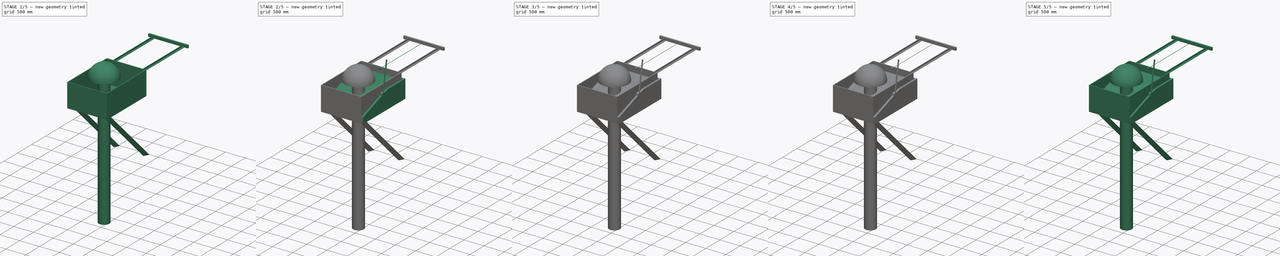
[diagram: build sequence overview — one tinted view per stage of 5, left to right]
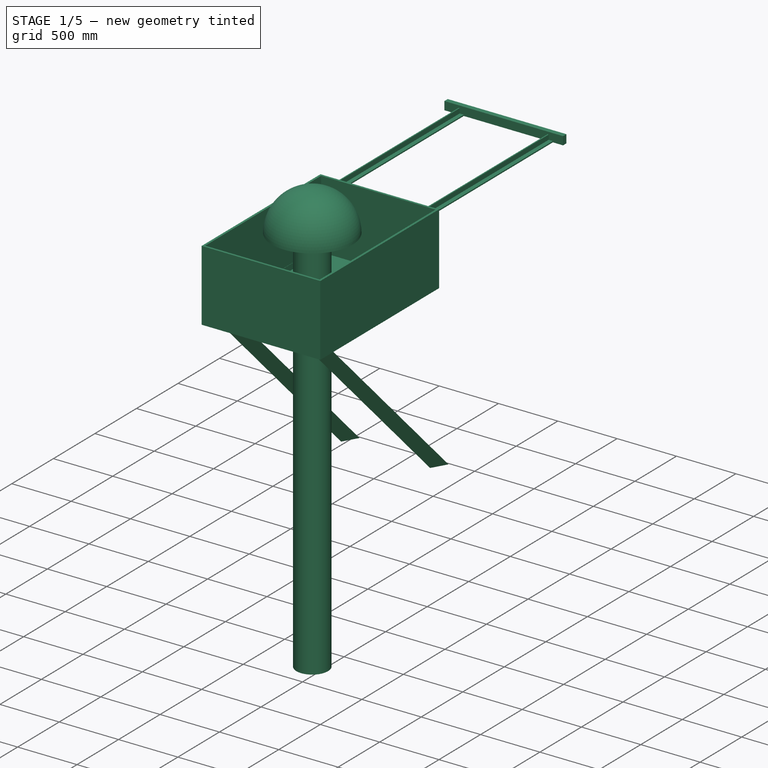
[diagram: stage 1 of 5 — iso view after this stage's code; geometry added in this stage tinted green]
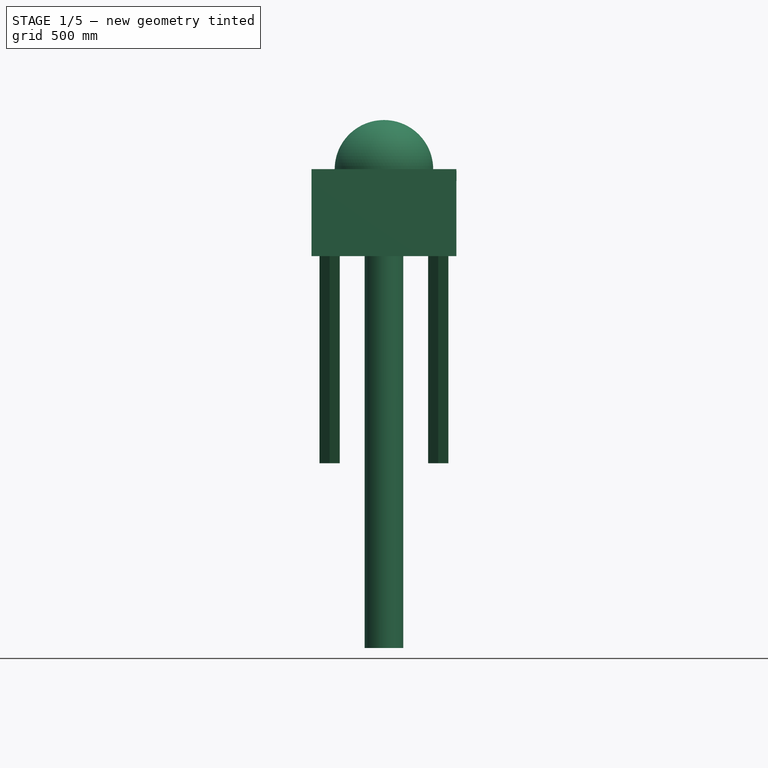
[diagram: stage 1 of 5 — front view after this stage's code; geometry added in this stage tinted green]
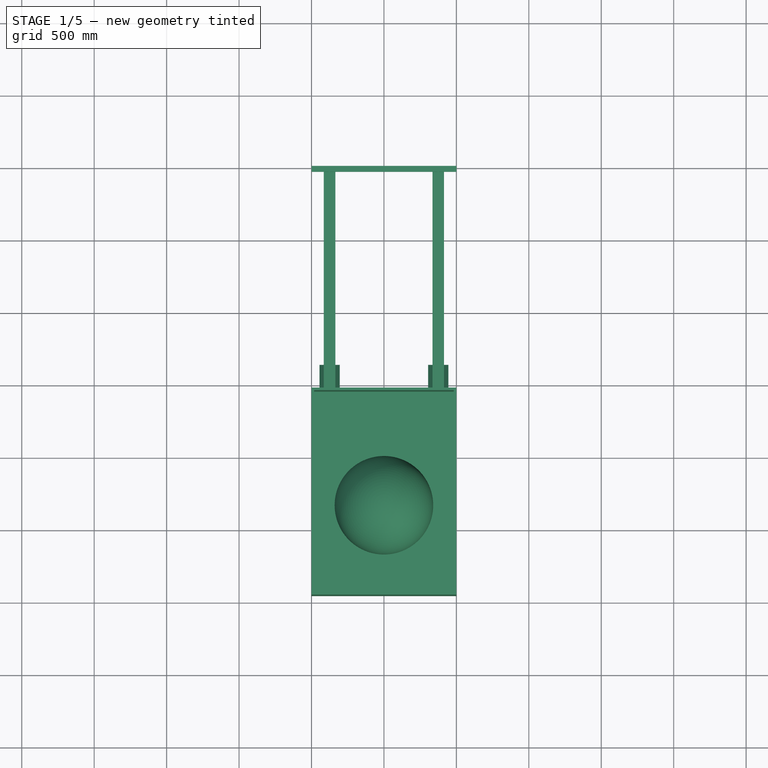
[diagram: stage 1 of 5 — top view after this stage's code; geometry added in this stage tinted green]
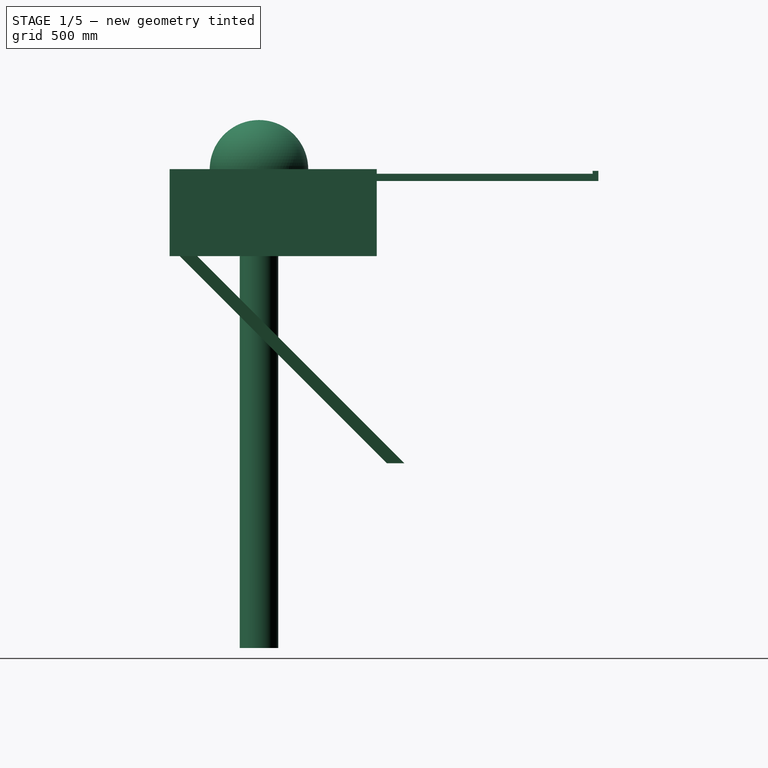
[diagram: stage 1 of 5 — right view after this stage's code; geometry added in this stage tinted green]
FCSTD DOCUMENT  (FreeCAD 0.16R6707 (Git))
Label: FINAL_PROLIJO
License: All rights reserved
LicenseURL: http://en.wikipedia.org/wiki/All_rights_reserved
objects: Part::FeaturePython×29, Sketcher::SketchObject×20, PartDesign::Pad×14, App::DocumentObjectGroup×10, Part::Cylinder×6, Part::MultiFuse×6, PartDesign::Pocket×4, Part::Part2DObjectPython×3, Part::Box×2, Part::Thickness×2, Spreadsheet::Sheet×1, Part::Mirroring×1, PartDesign::Fillet×1, Part::Wedge×1, PartDesign::Revolution×1, Part::Feature×1, Part::Sphere×1, Part::Extrusion×1
note: 112 computed .brp shape members not serialized (recipe doc carries the construction recipe); baked Part::Feature solids carry a one-line shape summary decoded from their .brp

FEATURE [Spreadsheet::Sheet] Spreadsheet  label="Medidas"
  cells = A1=CAJA; C1=TAPA; A2=ESPESOR; B2(espesor)=18; C2=ESPESOR; D2==B2; A3=ALTURA; B3(alto_caja)=600; C3=ALTURA1; D3(alto_tapa1)=450; A4=LARGO; B4(largo_caja)=1430; C4=ALTURA2; D4(alto_tapa2)=150; A5=ANCHO; B5(ancho_caja)=1000; C5=LARGO1; D5(largo_tapa1)=1500; A6=LARGO RIEL; B6(largo_riel)=1500; C6=LARGO 2; D6(largo_tapa2)=630; A7=Z EJE BRAZOS; B7(z_brazos)=400; C7=ANCHO; D7(ancho_tapa)=1046; A8=Y EJE BRAZOS; B8(y_brazos)==B4 / 2; C8=INCLINACION TECHO; D8(inclinacion_techo)==atan((D3 - D4) / (D5 - D6)); A9=LARGO BRAZOS; B9(largo_brazos)==sqrt((B3 - B7 - 25) ^ 2 + (B4 - B8) ^ 2); C9=Z TAPA; D9(z_tapa)==sin(90 - B10) * B9 + B7; A10=INCLINACION BRAZOS; B10(inclinacion_brazos)=-10; C10=Y TAPA; D10(y_tapa)==B4 - sin(B11) * B9 + cos(90 - B10) * B9; A11=RANGO DE INCLINACION +/-; B11==90° - atan((B3 - B7 - 25) / (B4 - B8)); C11=INCLINACION TAPA; D11(inclinacion_tapa)==90° - acos((D9 + 25 - B3) / (D5 - 50)); A12=Z RIEL; B12(z_riel)=600; C12=LARGO TECHO INCLINADO; D12(largo_techo_inclinado)==(D3 - D4) / sin(D8); A13=RADIO EJE BRAZO; B13(radio_eje_brazos)=40
FEATURE [Part::Box] Box  label="Caja_base"
  Height = 600
  Length = 1000
  Width = 1430
  expr: Height = Medidas.alto_caja
  expr: Width = Medidas.largo_caja
  expr: Length = Medidas.ancho_caja
FEATURE [Part::Thickness] Thickness  label="caja_paredes"
  Faces = -> Box [Face6]
  Intersection = false
  Join = 0
  Mode = 0
  SelfIntersection = false
  Value = -18
  expr: Value = -Medidas.espesor
FEATURE [Sketcher::SketchObject] Sketch
  Placement = pos=(0,1430,0) rot=(0,0.707107,0.707107;3.14159rad)
  Support = -> Thickness [Face4]
  expr: Constraints[53] = Medidas.alto_caja - 81.65000000000001
  expr: Constraints[52] = Medidas.ancho_caja * 3 / 8
  sketch-geometry (18):
    g0: LineSegment StartX=-165 StartY=518.35 StartZ=0 EndX=-85 EndY=518.35 EndZ=0
    g1: LineSegment StartX=-85 StartY=518.35 StartZ=0 EndX=-85 EndY=528.35 EndZ=0
    g2: LineSegment StartX=-85 StartY=528.35 StartZ=0 EndX=-120 EndY=528.35 EndZ=0
    g3: LineSegment StartX=-120 StartY=528.35 StartZ=0 EndX=-120 EndY=568.35 EndZ=0
    g4: LineSegment StartX=-120 StartY=568.35 StartZ=0 EndX=-130 EndY=568.35 EndZ=0
    g5: LineSegment StartX=-130 StartY=568.35 StartZ=0 EndX=-130 EndY=528.35 EndZ=0
    g6: LineSegment StartX=-130 StartY=528.35 StartZ=0 EndX=-165 EndY=528.35 EndZ=0
    g7: LineSegment StartX=-165 StartY=528.35 StartZ=0 EndX=-165 EndY=518.35 EndZ=0
    g8: LineSegment StartX=-915 StartY=518.35 StartZ=0 EndX=-835 EndY=518.35 EndZ=0
    g9: LineSegment StartX=-835 StartY=518.35 StartZ=0 EndX=-835 EndY=528.35 EndZ=0
    g10: LineSegment StartX=-915 StartY=528.35 StartZ=0 EndX=-915 EndY=518.35 EndZ=0
    g11: LineSegment [constr] StartX=-500 StartY=0 StartZ=0 EndX=-500 EndY=701.748 EndZ=0
    g12: LineSegment StartX=-915 StartY=528.35 StartZ=0 EndX=-880 EndY=528.35 EndZ=0
    g13: LineSegment StartX=-880 StartY=528.35 StartZ=0 EndX=-880 EndY=568.35 EndZ=0
    g14: LineSegment StartX=-880 StartY=568.35 StartZ=0 EndX=-870 EndY=568.35 EndZ=0
    g15: LineSegment StartX=-870 StartY=568.35 StartZ=0 EndX=-870 EndY=528.35 EndZ=0
    g16: LineSegment StartX=-870 StartY=528.35 StartZ=0 EndX=-835 EndY=528.35 EndZ=0
    g17: LineSegment [constr] StartX=-125 StartY=568.35 StartZ=0 EndX=-125 EndY=518.35 EndZ=0
  constraints (55):
    c: Horizontal(g0)
    c: Coincident(g0,g1)
    c: Vertical(g1)
    c: Coincident(g1,g2)
    c: Horizontal(g2)
    c: Coincident(g2,g3)
    c: Vertical(g3)
    c: Coincident(g3,g4)
    c: Horizontal(g4)
    c: Coincident(g4,g5)
    c: Vertical(g5)
    c: Coincident(g5,g6)
    c: Horizontal(g6)
    c: Coincident(g6,g7)
    c: Coincident(g7,g0)
    c: Vertical(g7)
    c: Equal(g2,g6)
    c: DistanceX(g4,g4) = 10
    c: Horizontal(g8)
    c: Coincident(g8,g9)
    c: Vertical(g9)
    c: Coincident(g10,g8)
    c: Equal(g9,g10)
    c: Vertical(g10)
    c: PointOnObject(g11,g-1)
    c: Vertical(g11)
    c: Symmetric(g8,g0,g11)
    c: DistanceX(g11,g-1) = 500
    c: Coincident(g10,g12)
    c: Horizontal(g12)
    c: Coincident(g12,g13)
    c: Vertical(g13)
    c: Coincident(g13,g14)
    c: Horizontal(g14)
    c: Coincident(g14,g15)
    c: Vertical(g15)
    c: Coincident(g15,g16)
    c: Coincident(g16,g9)
    c: Horizontal(g16)
    c: Equal(g12,g16)
    c: DistanceX(g8,g8) = 80
    c: DistanceX(g12,g15) = 10
    c: Equal(g14,g10)
    c: DistanceX(g0,g0) = 80
    c: DistanceY(g0,g4) = 50
    c: DistanceY(g8,g14) = 50
    c: Equal(g7,g4)
    c: PointOnObject(g5,g2)
    c: PointOnObject(g17,g4)
    c: PointOnObject(g17,g0)
    c: Vertical(g17)
    c: Symmetric(g0,g0,g17)
    c: DistanceX(g11,g17) = 375
    c: DistanceY(g0) = 518.35
    c: DistanceY(g11,g11) = 701.748
FEATURE [PartDesign::Pad] Pad  label="caja_rieles"
  Length = 1500
  Length2 = 100
  Sketch = -> Sketch
  Type = 0
  expr: Length = Medidas.largo_riel
FEATURE [Part::Box] Box003  label="Cubo002"
  Height = 70
  Length = 1000
  Placement = pos=(1,2920,518.35) rot=(0,0,1;0rad)
  Width = 40
  expr: Placement.Base.z = Medidas.alto_caja - 81.65000000000001
  expr: Length = Medidas.ancho_caja
  expr: Placement.Base.y = Medidas.largo_caja + Medidas.largo_riel - 10
FEATURE [Part::MultiFuse] Fusion001  label="caja_rielCompleto"
  Shapes = -> [Box003,Pad]
FEATURE [Sketcher::SketchObject] Sketch037  label="Sketch perfil001"
  sketch-geometry (6):
    g0: LineSegment StartX=2 StartY=2 StartZ=0 EndX=50 EndY=2 EndZ=0
    g1: LineSegment StartX=50 StartY=2 StartZ=0 EndX=50 EndY=0 EndZ=0
    g2: LineSegment StartX=50 StartY=0 StartZ=0 EndX=0 EndY=0 EndZ=0
    g3: LineSegment StartX=0 StartY=0 StartZ=0 EndX=0 EndY=50 EndZ=0
    g4: LineSegment StartX=0 StartY=50 StartZ=0 EndX=2 EndY=50 EndZ=0
    g5: LineSegment StartX=2 StartY=50 StartZ=0 EndX=2 EndY=2 EndZ=0
  constraints (17):
    c: Coincident(g0,g1)
    c: Vertical(g1)
    c: Coincident(g1,g2)
    c: Horizontal(g2)
    c: Coincident(g2,g3)
    c: Vertical(g3)
    c: Coincident(g3,g4)
    c: Horizontal(g4)
    c: Coincident(g4,g5)
    c: Coincident(g5,g0)
    c: Vertical(g5)
    c: Horizontal(g0)
    c: Coincident(g2,g-1)
    c: Equal(g5,g0)
    c: DistanceY(g1,g1) = -2
    c: Equal(g4,g1)
    c: DistanceY(g-1,g3) = 50
FEATURE [PartDesign::Pad] Pad019  label="Perfil_largo_caja"
  Length = 1294
  Length2 = 0
  Sketch = -> Sketch037
  Type = 4
  expr: Length = Medidas.largo_caja - 2 * Medidas.espesor - 100
FEATURE [Part::Cylinder] Cylinder009  label="Pilar"
  Angle = 360
  Height = 3304
  Placement = pos=(500,785,-2659) rot=(0,0,1;0rad)
  Radius = 133
  expr: Placement.Base.x = Medidas.ancho_caja / 2
FEATURE [Part::Sphere] Sphere001  label="Telscopio"
  Angle1 = 0
  Angle2 = 90
  Angle3 = 360
  Placement = pos=(500,785,645) rot=(0,0,1;0rad)
  Radius = 340
  expr: Placement.Base.x = Medidas_caja.ancho_caja / 2
FEATURE [Part::MultiFuse] Fusion003004  label="Pilarytele"
  Placement = pos=(0,-168,-46) rot=(0,0,1;0rad)
  Shapes = -> [Sphere001,Cylinder009]
FEATURE [Sketcher::SketchObject] Sketch050
  Placement = pos=(0,0,0) rot=(1,0,0;3.14159rad)
  expr: Constraints[11] = Medidas.ancho_caja * 3 / 8
  expr: Constraints[2] = Medidas.ancho_caja / 2
  sketch-geometry (7):
    g0: LineSegment [constr] StartX=500 StartY=0 StartZ=0 EndX=500 EndY=-310.186 EndZ=0
    g1: LineSegment StartX=125 StartY=-70 StartZ=0 EndX=55 EndY=-191.244 EndZ=0
    g2: LineSegment StartX=55 StartY=-191.244 StartZ=0 EndX=195 EndY=-191.244 EndZ=0
    g3: LineSegment StartX=195 StartY=-191.244 StartZ=0 EndX=125 EndY=-70 EndZ=0
    g4: LineSegment StartX=875 StartY=-70 StartZ=0 EndX=805 EndY=-191.244 EndZ=0
    g5: LineSegment StartX=805 StartY=-191.244 StartZ=0 EndX=945 EndY=-191.244 EndZ=0
    g6: LineSegment StartX=945 StartY=-191.244 StartZ=0 EndX=875 EndY=-70 EndZ=0
  constraints (20):
    c: PointOnObject(g0,g-1)
    c: Vertical(g0)
    c: DistanceX(g0) = 500
    c: Coincident(g1,g2)
    c: Horizontal(g2)
    c: Coincident(g2,g3)
    c: Coincident(g3,g1)
    c: Equal(g2,g3)
    c: Equal(g3,g1)
    c: DistanceX(g2,g2) = 140
    c: DistanceY(g1,g-1) = 70
    c: DistanceX(g1,g0) = 375
    c: Coincident(g4,g5)
    c: Horizontal(g5)
    c: Coincident(g5,g6)
    c: Coincident(g6,g4)
    c: Equal(g5,g6)
    c: Equal(g6,g4)
    c: Equal(g2,g5) = 140
    c: Symmetric(g4,g1,g0)
FEATURE [Part::Part2DObjectPython] Line  # Draft 2D object (typed FeaturePython)
  ChamferSize = 0
  Closed = false
  End = (0,1454.57,630.392)
  FilletRadius = 0
  Length = 842.991
  MakeFace = true
  Points = (2) [(0,611.578,630.392),(0,1454.57,630.392)]
  Start = (0,611.578,630.392)
  Subdivisions = 0
FEATURE [Part::Part2DObjectPython] Line001  # Draft 2D object (typed FeaturePython)
  ChamferSize = 0
  Closed = false
  End = (0,2243.48,1121.37)
  FilletRadius = 0
  Length = 1704.16
  MakeFace = true
  Points = (2) [(0,611.578,630.392),(0,2243.48,1121.37)]
  Start = (0,611.578,630.392)
  Subdivisions = 0
FEATURE [App::DocumentObjectGroup] Construcci__n
  Group = -> [Circle,Line,Line001]
FEATURE [Part::Extrusion] Extrude001  label="Soportes001"
  Base = -> Sketch050
  Dir = (0,1430,-1430)
  Solid = true
  expr: Dir.y = Medidas.largo_caja
  expr: Dir.z = -Medidas.largo_caja
FEATURE [Sketcher::SketchObject] Sketch051
  Placement = pos=(1,0,0) rot=(0.57735,-0.57735,-0.57735;2.0944rad)
  Support = -> Fusion001 [Face1]
  expr: Constraints[2] = Medidas.z_brazos
  expr: Constraints[1] = Medidas.y_brazos
  expr: Constraints[0] = Medidas.radio_eje_brazos + 1
  sketch-geometry (1):
    g0: Circle CenterX=715 CenterY=400 CenterZ=0 NormalX=0 NormalY=0 NormalZ=1 Radius=41
  constraints (3):
    c: Radius(g0) = 41
    c: DistanceX(g0) = 715
    c: DistanceY(g0) = 400
FEATURE [PartDesign::Pocket] Pocket
  Length = 5
  Sketch = -> Sketch051
  Type = 1
FEATURE [Part::MultiFuse] Fusion003005  label="CajaConSoportes"
  Shapes = -> [Pocket,Extrude001]
FEATURE [App::DocumentObjectGroup] Grupo012  label="Cuerpo caja"
  Group = -> [Fusion001,Thickness,Fusion003005]
FEATURE [Part::FeaturePython] Clone  label="Clone of Perfil_largo_caja"  # Draft clone (typed FeaturePython)
  Objects = -> [Pad019]
  Placement = pos=(18,68,18) rot=(-0.57735,-0.57735,-0.57735;2.0944rad)
  Scale = (1,1,1)
  expr: Placement.Base.x = Medidas.espesor
  expr: Placement.Base.z = Medidas.espesor
  expr: Placement.Base.y = Medidas.espesor + 50
FEATURE [Part::FeaturePython] Clone100  label="Clone of Perfil_largo_caja001"  # Draft clone (typed FeaturePython)
  Objects = -> [Pad019]
  Placement = pos=(982,68,18) rot=(0,0.707107,0.707107;3.14159rad)
  Scale = (1,1,1)
  expr: Placement.Base.x = Medidas.ancho_caja - Medidas.espesor
  expr: Placement.Base.y = Medidas.espesor + 50
  expr: Placement.Base.z = Medidas.espesor
FEATURE [App::DocumentObjectGroup] Grupo001  label="PERFILES"
  Group = -> [Clone061,Clone060,Pad018,Clone059,Clone058,Pad019,Pad020,Clone063,Clone064,Clone,Clone100]
FEATURE [App::DocumentObjectGroup] Grupo  label="CAJA"
  Group = -> [mirror,Grupo001,Grupo012,Fusion005]
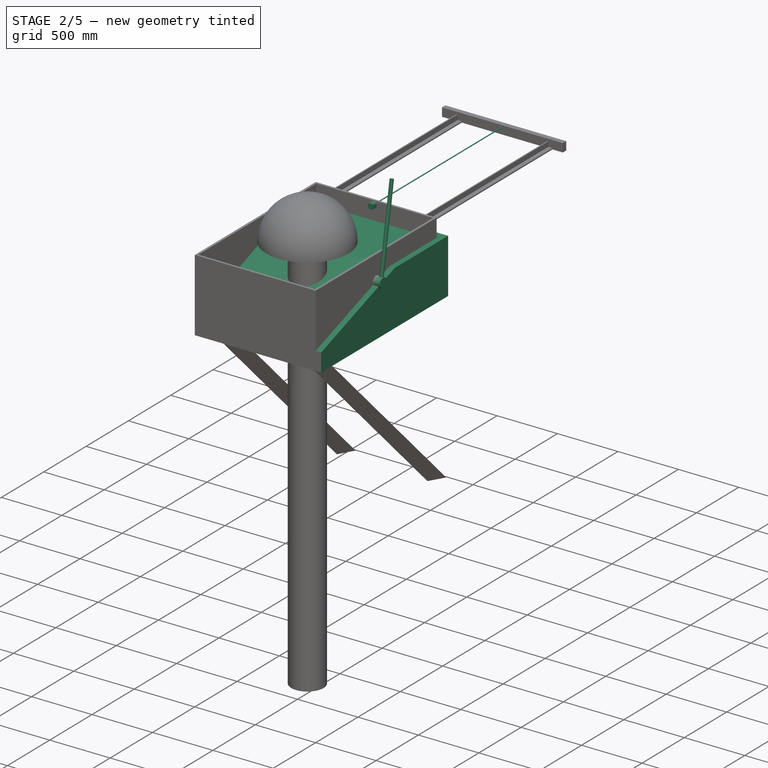
[diagram: stage 2 of 5 — iso view after this stage's code; geometry added in this stage tinted green]
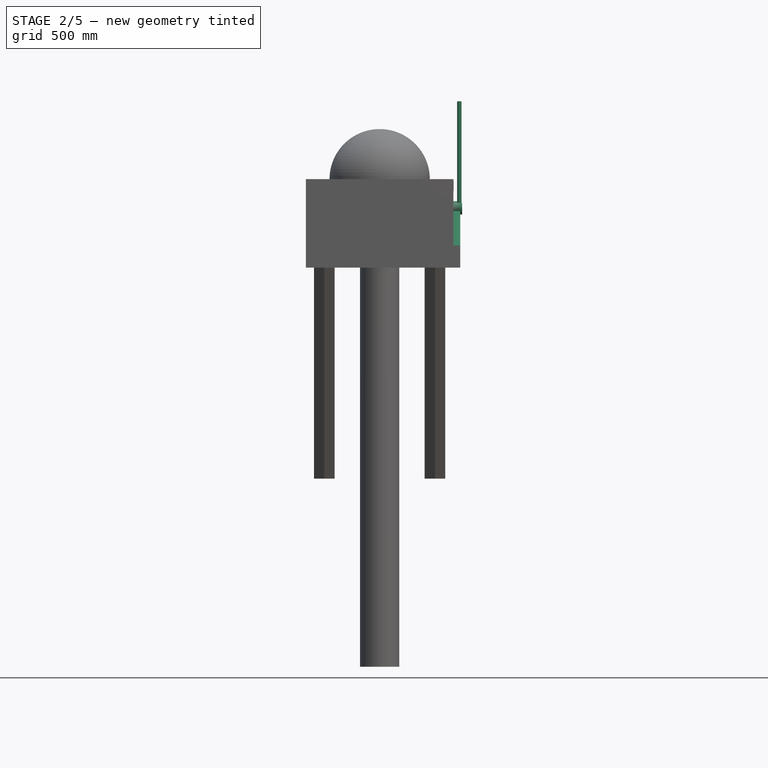
[diagram: stage 2 of 5 — front view after this stage's code; geometry added in this stage tinted green]
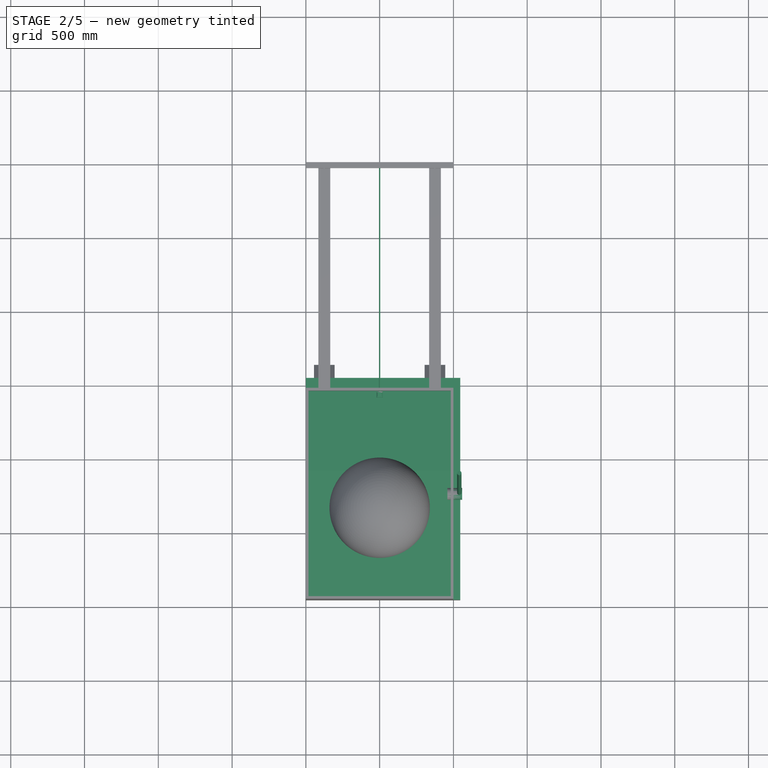
[diagram: stage 2 of 5 — top view after this stage's code; geometry added in this stage tinted green]
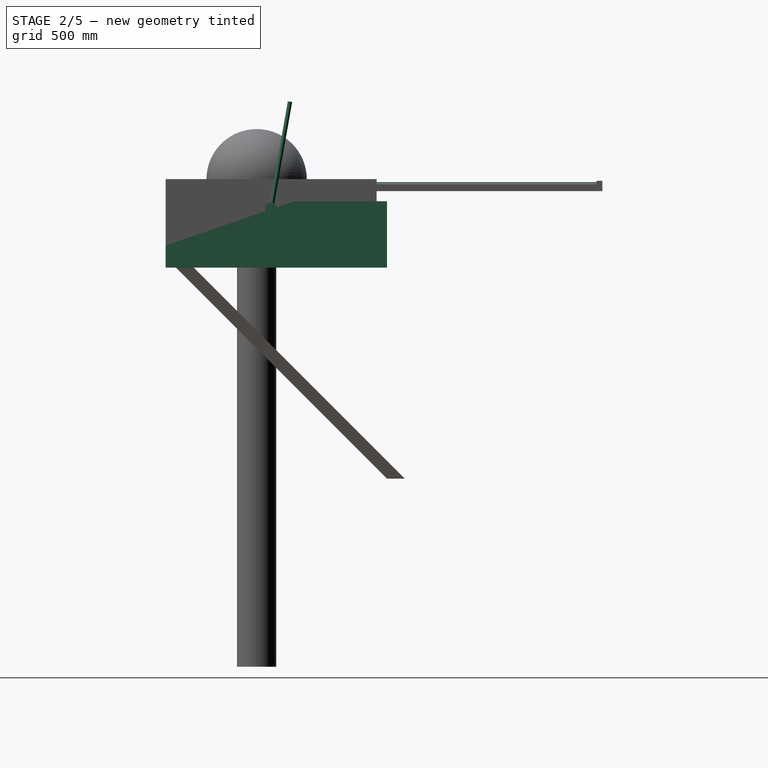
[diagram: stage 2 of 5 — right view after this stage's code; geometry added in this stage tinted green]
FEATURE [Part::Cylinder] Cylinder002  label="Eje_brazo"
  Angle = 360
  Height = 100
  Placement = pos=(-59,715,400) rot=(0,1,0;1.5708rad)
  Radius = 40
  expr: Radius = Medidas.radio_eje_brazos
  expr: Placement.Base.y = Medidas.y_brazos
  expr: Placement.Base.z = Medidas.z_brazos
FEATURE [Part::Cylinder] Cylinder001  label="Brazo_base"
  Angle = 360
  Height = 736.105
  Placement = pos=(-40,715,400) rot=(-1,0,0;0.174533rad)
  Radius = 15
  expr: Placement.Rotation.Axis.x = 1
  expr: Placement.Rotation.Angle = Medidas.inclinacion_brazos
  expr: Placement.Base.y = Medidas.y_brazos
  expr: Height = Medidas.largo_brazos
  expr: Placement.Base.z = Medidas.z_brazos
FEATURE [Part::MultiFuse] Fusion  label="Brazo"
  Shapes = -> [Cylinder001,Cylinder002]
FEATURE [Part::Mirroring] mirror  label="Brazos"
  Base = (500,0,0)
  Normal = (1,0,0)
  Source = -> Fusion
  expr: Base.x = Medidas.ancho_caja / 2
FEATURE [Sketcher::SketchObject] Sketch039
  Placement = pos=(0,0,0) rot=(0.57735,0.57735,0.57735;2.0944rad)
  expr: Constraints[13] = Medidas.alto_tapa1
  expr: Constraints[12] = Medidas.largo_tapa1
  expr: Constraints[11] = Medidas.largo_tapa2
  expr: Constraints[10] = Medidas.alto_tapa2
  sketch-geometry (5):
    g0: LineSegment StartX=0 StartY=0 StartZ=0 EndX=0 EndY=150 EndZ=0
    g1: LineSegment StartX=0 StartY=150 StartZ=0 EndX=870 EndY=450 EndZ=0
    g2: LineSegment StartX=870 StartY=450 StartZ=0 EndX=1500 EndY=450 EndZ=0
    g3: LineSegment StartX=1500 StartY=450 StartZ=0 EndX=1500 EndY=0 EndZ=0
    g4: LineSegment StartX=1500 StartY=0 StartZ=0 EndX=0 EndY=0 EndZ=0
  constraints (14):
    c: Coincident(g-1,g0)
    c: Vertical(g0)
    c: Coincident(g0,g1)
    c: Coincident(g1,g2)
    c: Horizontal(g2)
    c: Coincident(g2,g3)
    c: Vertical(g3)
    c: Coincident(g3,g4)
    c: Coincident(g4,g0)
    c: Horizontal(g4)
    c: DistanceY(g0,g0) = 150
    c: DistanceX(g2,g2) = 630
    c: DistanceX(g4,g4) = 1500
    c: DistanceY(g3,g3) = 450
FEATURE [PartDesign::Pad] Pad021  label="Tapa_Base"
  Length = 1046
  Length2 = 100
  Placement = pos=(0,0,0) rot=(0.57735,0.57735,0.57735;2.0944rad)
  Sketch = -> Sketch039
  Type = 0
  expr: Length = Medidas.ancho_tapa
FEATURE [Part::Thickness] Thickness001  label="Tapa_espesor"
  Faces = -> Pad021 [Face5]
  Intersection = false
  Join = 0
  Mode = 0
  SelfIntersection = false
  Value = -18
  expr: Value = -Medidas.espesor
FEATURE [Sketcher::SketchObject] Sketch040  label="Sketch_huecos_tapa"
  Placement = pos=(0,1500,0) rot=(0,0.707107,0.707107;3.14159rad)
  Support = -> Thickness001 [Face4]
  expr: Constraints[5] = Medidas.ancho_caja * 3 / 8
  expr: Constraints[2] = -Medidas.ancho_tapa / 2
  sketch-geometry (15):
    g0: LineSegment [constr] StartX=-523 StartY=0 StartZ=0 EndX=-523 EndY=50 EndZ=0
    g1: LineSegment [constr] StartX=-148 StartY=0 StartZ=0 EndX=-148 EndY=50 EndZ=0
    g2: LineSegment [constr] StartX=-898 StartY=50 StartZ=0 EndX=-898 EndY=0 EndZ=0
    g3: LineSegment StartX=-923 StartY=0 StartZ=0 EndX=-873 EndY=0 EndZ=0
    g4: LineSegment StartX=-873 StartY=0 StartZ=0 EndX=-873 EndY=50 EndZ=0
    g5: LineSegment StartX=-873 StartY=50 StartZ=0 EndX=-923 EndY=50 EndZ=0
    g6: LineSegment StartX=-923 StartY=50 StartZ=0 EndX=-923 EndY=0 EndZ=0
    g7: LineSegment StartX=-173 StartY=50 StartZ=0 EndX=-123 EndY=50 EndZ=0
    g8: LineSegment StartX=-123 StartY=50 StartZ=0 EndX=-123 EndY=0 EndZ=0
    g9: LineSegment StartX=-123 StartY=0 StartZ=0 EndX=-173 EndY=0 EndZ=0
    g10: LineSegment StartX=-173 StartY=0 StartZ=0 EndX=-173 EndY=50 EndZ=0
    g11: LineSegment StartX=-573 StartY=0 StartZ=0 EndX=-473 EndY=0 EndZ=0
    g12: LineSegment StartX=-473 StartY=0 StartZ=0 EndX=-473 EndY=50 EndZ=0
    g13: LineSegment StartX=-473 StartY=50 StartZ=0 EndX=-573 EndY=50 EndZ=0
    g14: LineSegment StartX=-573 StartY=50 StartZ=0 EndX=-573 EndY=0 EndZ=0
  constraints (47):
    c: PointOnObject(g0,g-1)
    c: Vertical(g0)
    c: DistanceX(g0) = -523
    c: PointOnObject(g1,g-1)
    c: Vertical(g1)
    c: DistanceX(g0,g1) = 375
    c: Vertical(g2)
    c: Symmetric(g2,g1,g0)
    c: Coincident(g3,g4)
    c: Coincident(g4,g5)
    c: Coincident(g5,g6)
    c: Coincident(g6,g3)
    c: Horizontal(g3)
    c: Horizontal(g5)
    c: Vertical(g4)
    c: Vertical(g6)
    c: PointOnObject(g3,g-1)
    c: PointOnObject(g2,g5)
    c: Coincident(g7,g8)
    c: Coincident(g8,g9)
    c: Coincident(g9,g10)
    c: Coincident(g10,g7)
    c: Horizontal(g7)
    c: Horizontal(g9)
    c: Vertical(g8)
    c: Vertical(g10)
    c: PointOnObject(g8,g-1)
    c: PointOnObject(g1,g7)
    c: Equal(g2,g1)
    c: DistanceY(g1,g1) = 50
    c: Equal(g7,g5)
    c: DistanceX(g7,g7) = 50
    c: Symmetric(g5,g4,g2)
    c: Symmetric(g7,g7,g1)
    c: DistanceY(g0,g0) = 50
    c: Coincident(g11,g12)
    c: Coincident(g12,g13)
    c: Coincident(g13,g14)
    c: Coincident(g14,g11)
    c: Horizontal(g11)
    c: Horizontal(g13)
    c: Vertical(g12)
    c: Vertical(g14)
    c: PointOnObject(g11,g-1)
    c: PointOnObject(g0,g13)
    c: DistanceX(g13,g13) = 100
    c: Symmetric(g12,g13,g0)
FEATURE [PartDesign::Pocket] Pocket001  label="Tapa_huecos"
  Length = 18
  Sketch = -> Sketch040
  Type = 0
  expr: Length = Medidas.espesor
FEATURE [Sketcher::SketchObject] Sketch048  label="Sketch_cierres_tapay"
  Placement = pos=(0,18,0) rot=(0,0.707107,0.707107;3.14159rad)
  Support = -> Pocket001 [Face11]
  expr: Constraints[23] = Medidas.espesor
  expr: Constraints[25] = Medidas.espesor
  expr: Constraints[20] = -Medidas.ancho_tapa / 2
  expr: Constraints[16] = -Medidas.espesor
  sketch-geometry (9):
    g0: LineSegment StartX=-1028 StartY=68 StartZ=0 EndX=-992 EndY=68 EndZ=0
    g1: LineSegment StartX=-992 StartY=68 StartZ=0 EndX=-992 EndY=50 EndZ=0
    g2: LineSegment StartX=-992 StartY=50 StartZ=0 EndX=-1028 EndY=50 EndZ=0
    g3: LineSegment StartX=-1028 StartY=50 StartZ=0 EndX=-1028 EndY=68 EndZ=0
    g4: LineSegment StartX=-54 StartY=68 StartZ=0 EndX=-18 EndY=68 EndZ=0
    g5: LineSegment StartX=-18 StartY=68 StartZ=0 EndX=-18 EndY=50 EndZ=0
    g6: LineSegment StartX=-18 StartY=50 StartZ=0 EndX=-54 EndY=50 EndZ=0
    g7: LineSegment StartX=-54 StartY=50 StartZ=0 EndX=-54 EndY=68 EndZ=0
    g8: LineSegment [constr] StartX=-523 StartY=0 StartZ=0 EndX=-523 EndY=90 EndZ=0
  constraints (27):
    c: Coincident(g0,g1)
    c: Coincident(g1,g2)
    c: Coincident(g2,g3)
    c: Coincident(g3,g0)
    c: Horizontal(g0)
    c: Horizontal(g2)
    c: Vertical(g1)
    c: Vertical(g3)
    c: Coincident(g4,g5)
    c: Coincident(g5,g6)
    c: Coincident(g6,g7)
    c: Coincident(g7,g4)
    c: Horizontal(g4)
    c: Horizontal(g6)
    c: Vertical(g5)
    c: Vertical(g7)
    c: DistanceX(g5) = -18
    c: DistanceY(g5) = 50
    c: PointOnObject(g8,g-1)
    c: Vertical(g8)
    c: DistanceX(g8) = -523
    c: Symmetric(g2,g5,g8)
    c: DistanceX(g2,g2) = 36
    c: DistanceY(g1,g1) = 18
    c: DistanceX(g6,g5) = 36
    c: DistanceY(g7,g7) = 18
    c: DistanceY(g8,g8) = 90
FEATURE [PartDesign::Pad] Pad028  label="cierres_tapay"
  Length = 1464
  Length2 = 100
  Sketch = -> Sketch048
  Type = 0
  expr: Length = Medidas.largo_tapa1 - 2 * Medidas.espesor
FEATURE [Sketcher::SketchObject] Sketch049  label="Sketch_cierres_tapax"
  Placement = pos=(0,0,0) rot=(0.57735,-0.57735,-0.57735;2.0944rad)
  Support = -> Pad028 [Face4]
  expr: Constraints[7] = Medidas.espesor
  expr: Constraints[20] = -Medidas.largo_tapa1 + Medidas.espesor
  sketch-geometry (8):
    g0: LineSegment StartX=-72 StartY=50 StartZ=0 EndX=-18 EndY=50 EndZ=0
    g1: LineSegment StartX=-18 StartY=50 StartZ=0 EndX=-18 EndY=68 EndZ=0
    g2: LineSegment StartX=-18 StartY=68 StartZ=0 EndX=-72 EndY=68 EndZ=0
    g3: LineSegment StartX=-72 StartY=68 StartZ=0 EndX=-72 EndY=50 EndZ=0
    g4: LineSegment StartX=-1428 StartY=68 StartZ=0 EndX=-1482 EndY=68 EndZ=0
    g5: LineSegment StartX=-1482 StartY=68 StartZ=0 EndX=-1482 EndY=50 EndZ=0
    g6: LineSegment StartX=-1482 StartY=50 StartZ=0 EndX=-1428 EndY=50 EndZ=0
    g7: LineSegment StartX=-1428 StartY=50 StartZ=0 EndX=-1428 EndY=68 EndZ=0
  constraints (24):
    c: Horizontal(g0)
    c: Coincident(g0,g1)
    c: Vertical(g1)
    c: Coincident(g1,g2)
    c: Horizontal(g2)
    c: Coincident(g3,g0)
    c: Vertical(g3)
    c: DistanceY(g1,g1) = 18
    c: DistanceX(g0,g0) = 54
    c: DistanceY(g0) = 50
    c: Coincident(g3,g2)
    c: Coincident(g4,g5)
    c: Coincident(g5,g6)
    c: Coincident(g6,g7)
    c: Coincident(g7,g4)
    c: Horizontal(g4)
    c: Horizontal(g6)
    c: Vertical(g5)
    c: Vertical(g7)
    c: DistanceY(g5,g5) = 18
    c: DistanceX(g5) = -1482
    c: DistanceX(g4,g4) = -54
    c: DistanceY(g5) = 50
    c: DistanceX(g0) = -18
FEATURE [PartDesign::Pad] Pad029  label="cierres_tapax"
  Length = 1010
  Length2 = 100
  Reversed = true
  Sketch = -> Sketch049
  Type = 0
  expr: Length = Medidas.ancho_tapa - 2 * Medidas.espesor
FEATURE [Part::Part2DObjectPython] Circle  # Draft 2D object (typed FeaturePython)
  FirstAngle = 0
  LastAngle = 180
  MakeFace = true
  Placement = pos=(0,715,400) rot=(0.57735,0.57735,0.57735;2.0944rad)
  Radius = 736.105
  Support = -> mirror
  expr: Placement.Base.z = Medidas.z_brazos
  expr: Radius = Medidas.largo_brazos
  expr: Placement.Base.y = Medidas.y_brazos
FEATURE [Sketcher::SketchObject] Sketch026  label="Sketch_rueda_base"
  Placement = pos=(0,0,0) rot=(1,0,0;1.5708rad)
  sketch-geometry (8):
    g0: LineSegment StartX=-13.5 StartY=20 StartZ=0 EndX=-8.5 EndY=20 EndZ=0
    g1: LineSegment StartX=-8.5 StartY=20 StartZ=0 EndX=-8.5 EndY=11 EndZ=0
    g2: LineSegment StartX=-8.5 StartY=11 StartZ=0 EndX=8.5 EndY=11 EndZ=0
    g3: LineSegment StartX=8.5 StartY=11 StartZ=0 EndX=8.5 EndY=20 EndZ=0
    g4: LineSegment StartX=8.5 StartY=20 StartZ=0 EndX=13.5 EndY=20 EndZ=0
    g5: LineSegment StartX=13.5 StartY=20 StartZ=0 EndX=13.5 EndY=6 EndZ=0
    g6: LineSegment StartX=13.5 StartY=6 StartZ=0 EndX=-13.5 EndY=6 EndZ=0
    g7: LineSegment StartX=-13.5 StartY=6 StartZ=0 EndX=-13.5 EndY=20 EndZ=0
  constraints (24):
    c: Horizontal(g0)
    c: Coincident(g0,g1)
    c: Vertical(g1)
    c: Coincident(g1,g2)
    c: Horizontal(g2)
    c: Coincident(g2,g3)
    c: Vertical(g3)
    c: Coincident(g3,g4)
    c: Horizontal(g4)
    c: Coincident(g4,g5)
    c: Vertical(g5)
    c: Coincident(g5,g6)
    c: Horizontal(g6)
    c: Coincident(g6,g7)
    c: Coincident(g7,g0)
    c: Vertical(g7)
    c: Equal(g0,g4)
    c: Equal(g1,g3)
    c: DistanceX(g2,g2) = 17
    c: Symmetric(g2,g1,g-2)
    c: DistanceX(g0,g0) = 5
    c: DistanceY(g-1,g5) = 6
    c: DistanceY(g5,g2) = 5
    c: DistanceY(g7,g7) = 14
FEATURE [PartDesign::Revolution] Revolution  label="Rueda_base"
  Angle = 360
  Axis = (1,0,0)
  Base = (0,0,0)
  Placement = pos=(0,0,0) rot=(1,0,0;1.5708rad)
  ReferenceAxis = -> Sketch026 [H_Axis]
  Sketch = -> Sketch026
FEATURE [Part::FeaturePython] Clone098  label="Clone of Rueda_base"  # Draft clone (typed FeaturePython)
  Objects = -> [Revolution]
  Placement = pos=(148,1475,25) rot=(1,0,0;1.5708rad)
  Scale = (1,1,1)
  expr: Placement.Base.x = Medidas.ancho_caja / 8 + 23
  expr: Placement.Base.y = Medidas.largo_tapa1 - 25
FEATURE [Part::FeaturePython] Clone099  label="Clone of Rueda_base001"  # Draft clone (typed FeaturePython)
  Objects = -> [Revolution]
  Placement = pos=(898,1475,25) rot=(1,0,0;1.5708rad)
  Scale = (1,1,1)
  expr: Placement.Base.x = Medidas.ancho_caja * 7 / 8 + 23
  expr: Placement.Base.y = Medidas.largo_tapa1 - 25
FEATURE [App::DocumentObjectGroup] Grupo010  label="Rueda"
  Group = -> [Clone099,Clone098,Revolution]
FEATURE [App::DocumentObjectGroup] Grupo011  label="Cuerpo"
  Group = -> [Pad029,Pad028,Pocket001,Thickness001]
FEATURE [App::DocumentObjectGroup] Grupo002  label="TAPA"
  Group = -> [Grupo003,Grupo009,Grupo010,Grupo011,Fusion002]
FEATURE [Part::Cylinder] Cylinder008  label="Cilindro008"
  Angle = 360
  Height = 1518
  Placement = pos=(500,1407,575) rot=(-1,0,0;1.5708rad)
  Radius = 4
  expr: Placement.Base.z = Medidas.alto_caja - 25
  expr: Placement.Base.x = Medidas.ancho_caja / 2
  expr: Height = Medidas.largo_riel + Medidas.espesor
  expr: Placement.Base.y = Medidas.largo_caja - Medidas.espesor - 5
FEATURE [Part::Feature] Common001  label="Motor"
  Placement = pos=(500,1407,575) rot=(-1,0,0;1.5708rad)
  shape: bbox 42.3 x 60.1 x 42.3 mm, 55 faces (baked)
  expr: Placement.Base.x = Medidas.ancho_caja / 2
  expr: Placement.Base.y = Medidas.largo_caja - Medidas.espesor - 5
  expr: Placement.Base.z = Medidas.alto_caja - 25
FEATURE [Part::MultiFuse] Fusion005  label="Motor_y_sinfin"
  Shapes = -> [Cylinder008,Common001]
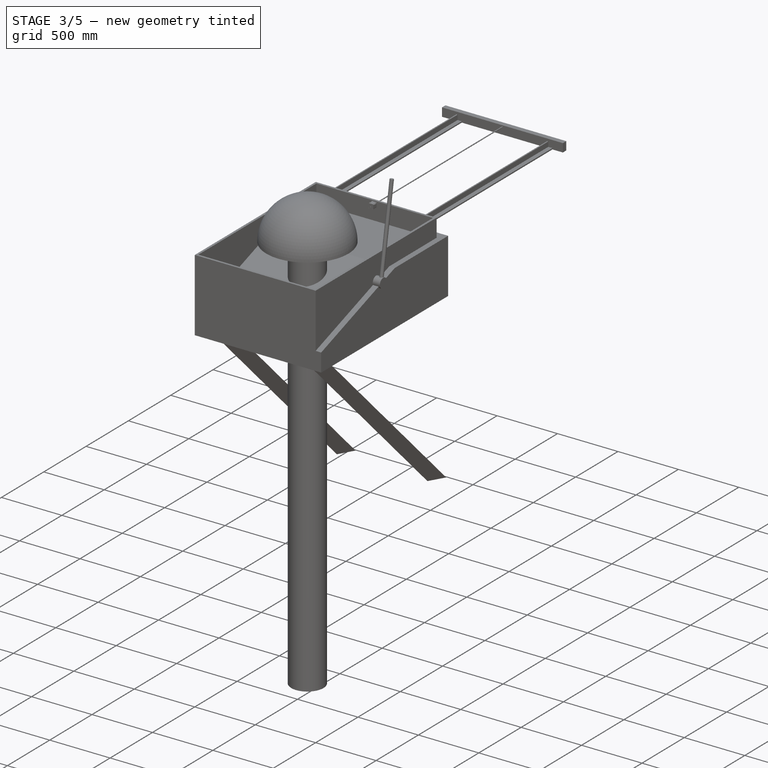
[diagram: stage 3 of 5 — iso view after this stage's code; geometry added in this stage tinted green]
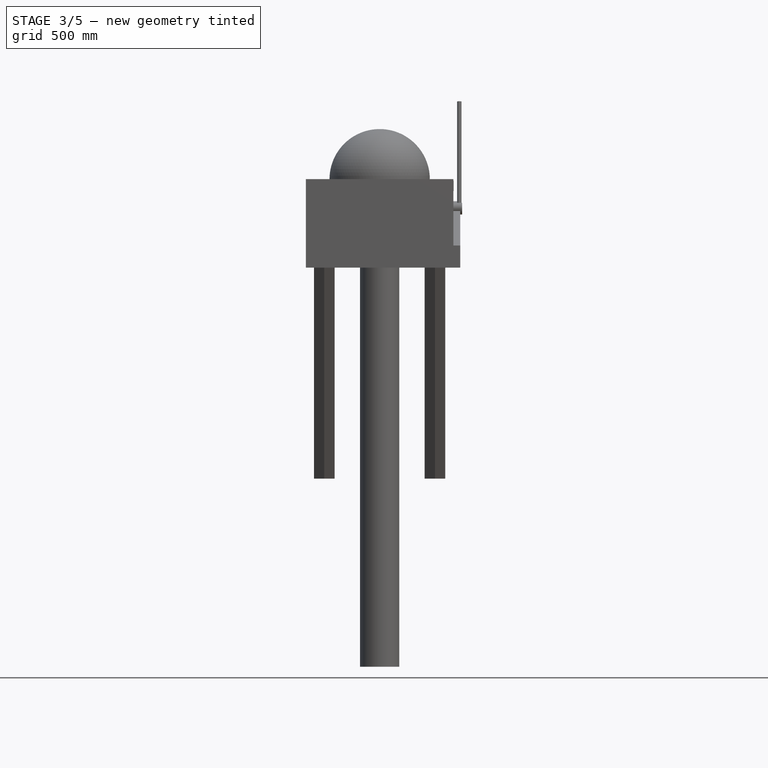
[diagram: stage 3 of 5 — front view after this stage's code; geometry added in this stage tinted green]
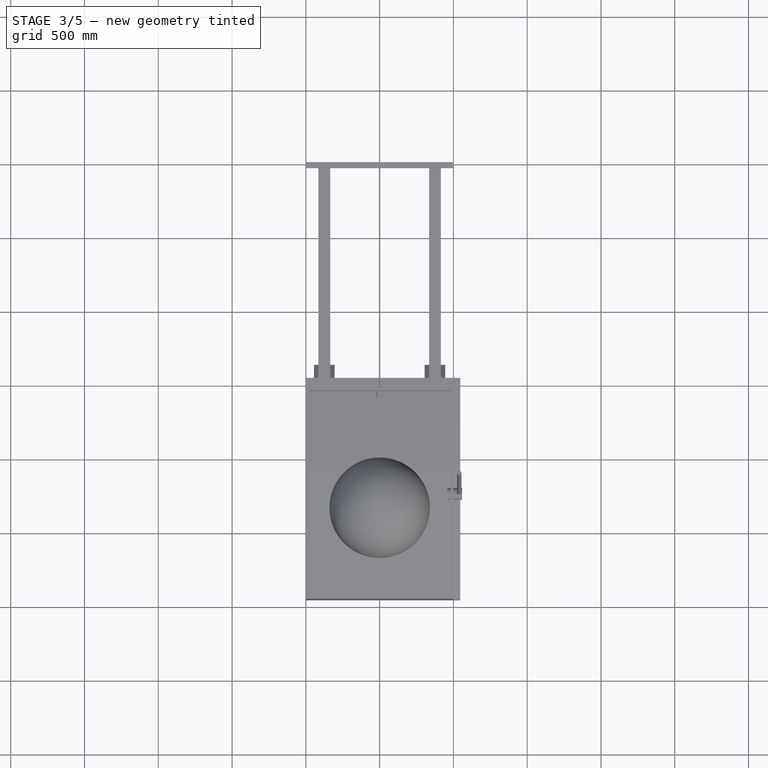
[diagram: stage 3 of 5 — top view after this stage's code; geometry added in this stage tinted green]
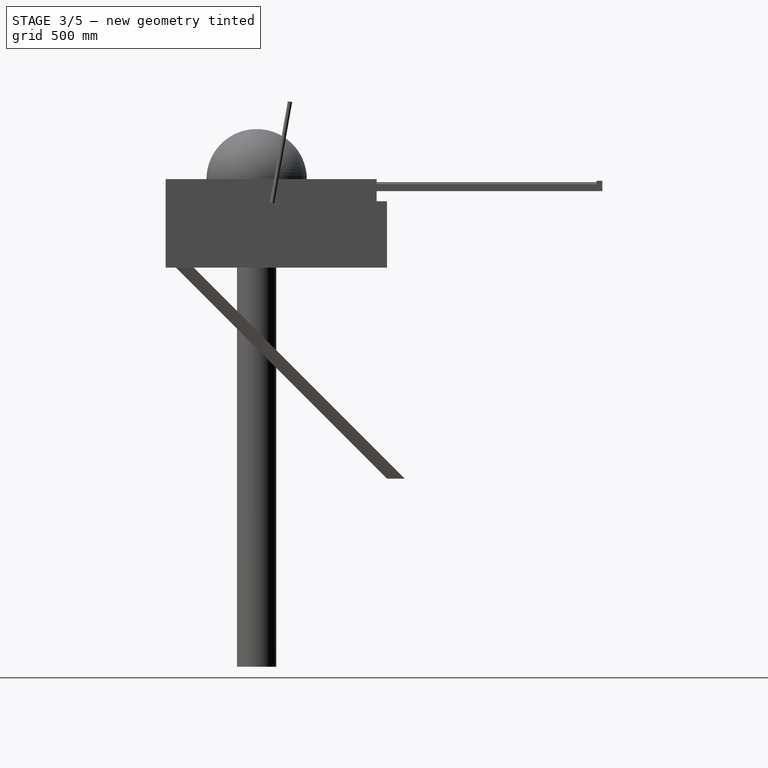
[diagram: stage 3 of 5 — right view after this stage's code; geometry added in this stage tinted green]
FEATURE [PartDesign::Pad] Pad030
  Length = 20
  Length2 = 100
  Sketch = -> Sketch020
  Type = 0
FEATURE [Sketcher::SketchObject] Sketch021
  Placement = pos=(0,0,0) rot=(1,0,0;3.14159rad)
  Support = -> Pad030 [Face7]
  sketch-geometry (1):
    g0: Circle CenterX=25 CenterY=-25 CenterZ=0 NormalX=0 NormalY=0 NormalZ=1 Radius=5
  constraints (3):
    c: DistanceX(g0) = 25
    c: DistanceY(g0) = -25
    c: Radius(g0) = 5
FEATURE [PartDesign::Pocket] Pocket001006
  Length = 5
  Sketch = -> Sketch021
  Type = 1
FEATURE [PartDesign::Fillet] Fillet
  Base = -> Pocket001006 [Edge3,Edge11,Edge15,Edge4]
  Radius = 9.9
FEATURE [Sketcher::SketchObject] Sketch024
  ExternalGeometry = -> [Fillet]
  Placement = pos=(25,0,0) rot=(0.57735,0.57735,0.57735;2.0944rad)
  Support = -> Fillet [Face12]
  sketch-geometry (3):
    g0: Circle CenterX=7.5 CenterY=10 CenterZ=0 NormalX=0 NormalY=0 NormalZ=1 Radius=3
    g1: Circle CenterX=42.5 CenterY=10 CenterZ=0 NormalX=0 NormalY=0 NormalZ=1 Radius=3
    g2: LineSegment [constr] StartX=25 StartY=0 StartZ=0 EndX=25 EndY=16.8469 EndZ=0
  constraints (11):
    c: DistanceX(g-3) = 50
    c: PointOnObject(g2,g-1)
    c: Vertical(g2)
    c: DistanceX(g-1,g2) = 25
    c: Symmetric(g0,g1,g2)
    c: Equal(g0,g1)
    c: Radius(g1) = 3
    c: DistanceY(g-4) = 20
    c: DistanceY(g0) = 10
    c: DistanceX(g-5) = 15
    c: DistanceX(g0) = 7.5
FEATURE [PartDesign::Pocket] Pocket002  label="bisagra_base"
  Length = 5
  Sketch = -> Sketch024
  Type = 1
FEATURE [App::DocumentObjectGroup] Grupo008  label="Bisagra_base"
  Group = -> [Pad030,Pocket001006,Fillet,Pocket002]
FEATURE [Part::FeaturePython] Clone076  label="Clone of bisagra_base"  # Draft clone (typed FeaturePython)
  Objects = -> [Pocket002]
  Placement = pos=(120.75,1500,0) rot=(0.57735,-0.57735,-0.57735;2.0944rad)
  Scale = (1,1,1)
  expr: Placement.Base.x = Medidas.ancho_tapa / 8 - 10
  expr: Placement.Base.y = Medidas.largo_tapa1
FEATURE [Part::FeaturePython] Clone080  label="Clone of Clone of bisagra_base003"  # Draft clone (typed FeaturePython)
  Objects = -> [Clone076]
  Placement = pos=(600,1500,0) rot=(0.57735,-0.57735,-0.57735;2.0944rad)
  Scale = (1,1,1)
  expr: Placement.Base.x = Medidas.ancho_tapa / 2 + 77
  expr: Placement.Base.y = Medidas.largo_tapa1
FEATURE [Part::FeaturePython] Clone081  label="Clone of Clone of bisagra_base004"  # Draft clone (typed FeaturePython)
  Objects = -> [Clone076]
  Placement = pos=(680,1500,0) rot=(0.57735,-0.57735,-0.57735;2.0944rad)
  Scale = (1,1,1)
  expr: Placement.Base.x = Medidas.ancho_tapa / 2 + 157
  expr: Placement.Base.y = Medidas.largo_tapa1
FEATURE [Part::FeaturePython] Clone082  label="Clone of Clone of bisagra_base005"  # Draft clone (typed FeaturePython)
  Objects = -> [Clone076]
  Placement = pos=(870.25,1500,0) rot=(0.57735,-0.57735,-0.57735;2.0944rad)
  Scale = (1,1,1)
  expr: Placement.Base.x = Medidas.ancho_tapa * 7 / 8 - 45
  expr: Placement.Base.y = Medidas.largo_tapa1
FEATURE [Part::FeaturePython] Clone083  label="Clone of Clone of bisagra_base006"  # Draft clone (typed FeaturePython)
  Objects = -> [Clone076]
  Placement = pos=(945.25,1500,0) rot=(0.57735,-0.57735,-0.57735;2.0944rad)
  Scale = (1,1,1)
  expr: Placement.Base.x = Medidas.ancho_tapa * 7 / 8 + 30
  expr: Placement.Base.y = Medidas.largo_tapa1
FEATURE [App::DocumentObjectGroup] Grupo009  label="Bisagras"
  Group = -> [Grupo008,Cylinder007,Cylinder006,Clone076,Clone077,Clone078,Clone079,Clone080,Clone081,Clone082,Clone083]
FEATURE [Part::Wedge] Wedge  label="Cuña"
  Placement = pos=(-45,7,-25) rot=(0,0,1;0rad)
  X2max = 90
  X2min = 0
  Xmax = 90
  Xmin = 0
  Ymax = 18
  Ymin = 0
  Z2max = 33
  Z2min = 0
  Zmax = 48
  Zmin = 0
FEATURE [Part::FeaturePython] Clone084  label="Clone of bisagra_base001"  # Draft clone (typed FeaturePython)
  Objects = -> [Pocket002]
  Placement = pos=(44,25,-25) rot=(0.57735,-0.57735,-0.57735;2.0944rad)
  Scale = (1,1,1)
FEATURE [Part::FeaturePython] Clone085  label="Clone of bisagra_base002"  # Draft clone (typed FeaturePython)
  Objects = -> [Pocket002]
  Placement = pos=(-24,25,-25) rot=(0.57735,-0.57735,-0.57735;2.0944rad)
  Scale = (1,1,1)
FEATURE [Part::MultiFuse] Fusion002  label="Socalo_bisagras"
  Placement = pos=(523,1475,25) rot=(0,0,1;0rad)
  Shapes = -> [Wedge,Clone084,Clone085]
  expr: Placement.Base.x = Medidas.ancho_tapa / 2
  expr: Placement.Base.y = Medidas.largo_tapa1 - 25
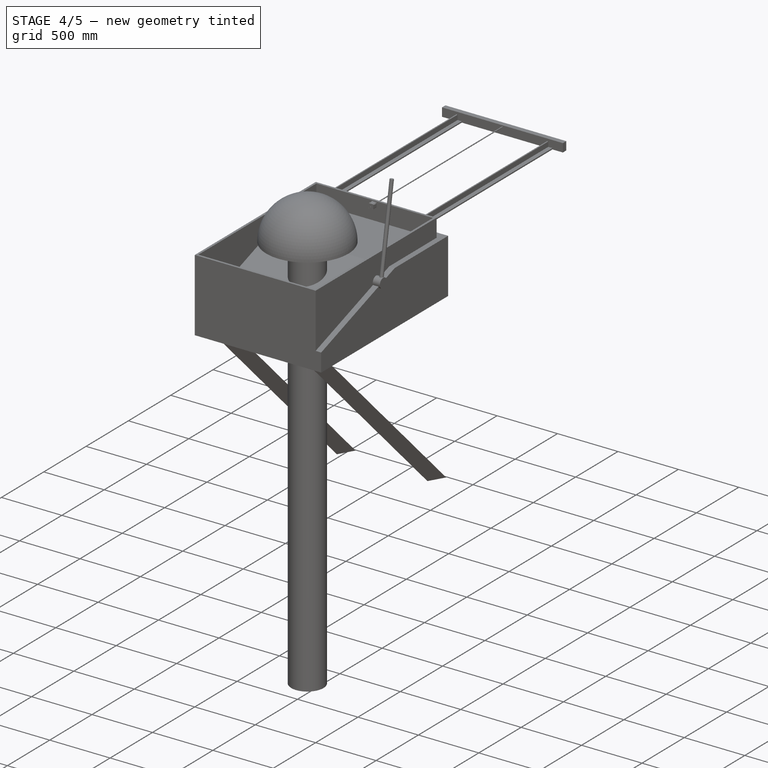
[diagram: stage 4 of 5 — iso view after this stage's code; geometry added in this stage tinted green]
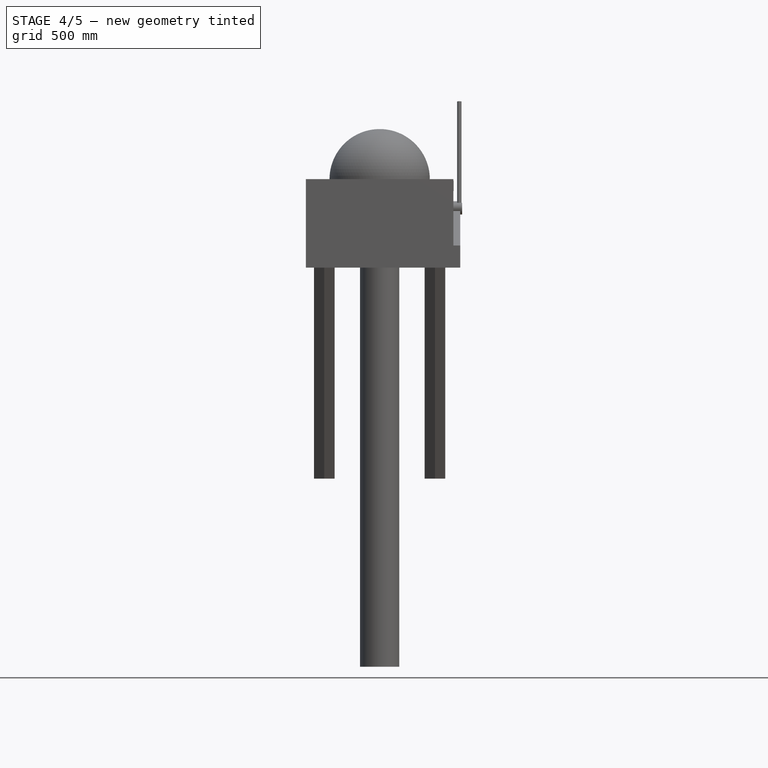
[diagram: stage 4 of 5 — front view after this stage's code; geometry added in this stage tinted green]
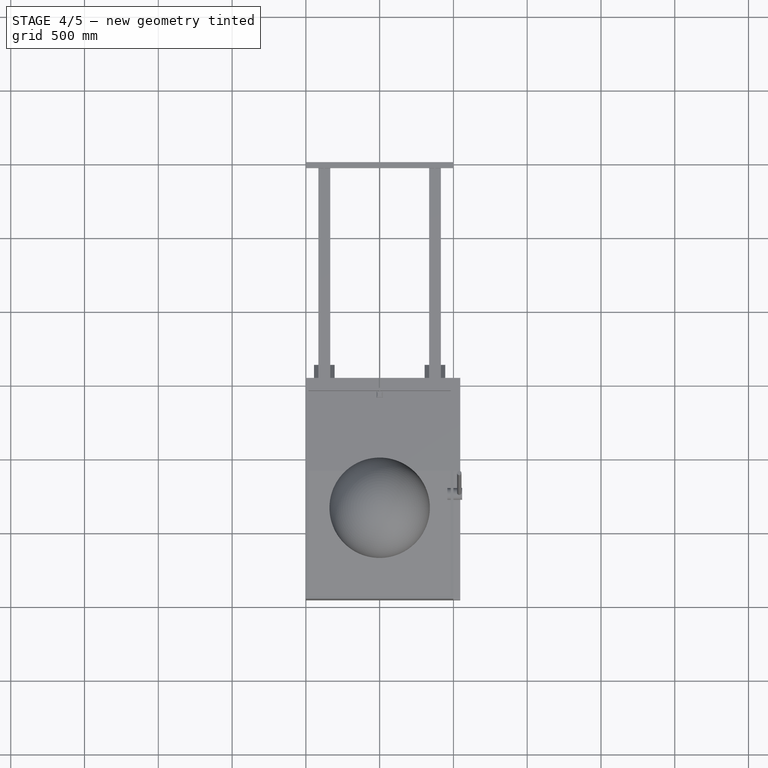
[diagram: stage 4 of 5 — top view after this stage's code; geometry added in this stage tinted green]
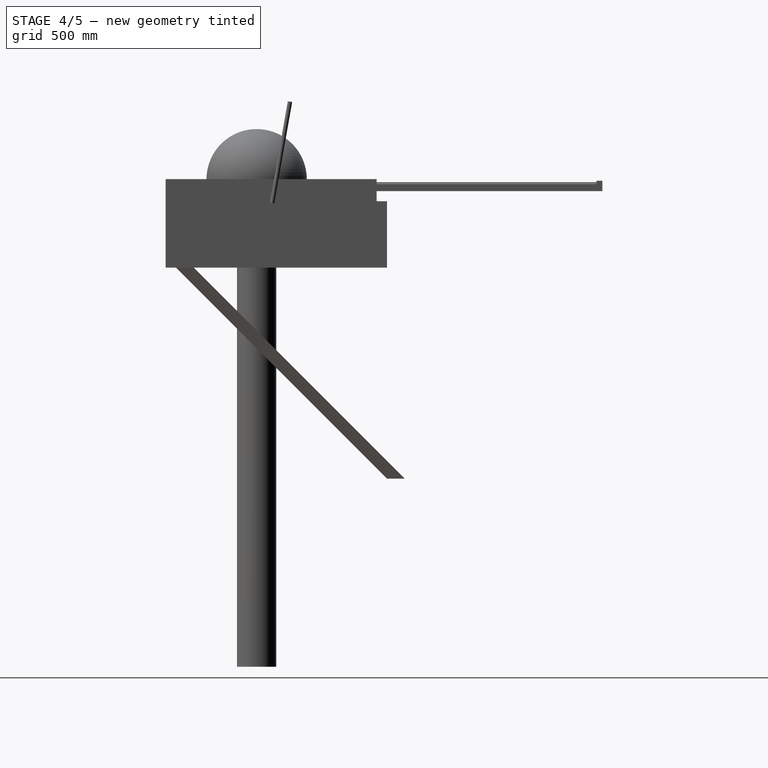
[diagram: stage 4 of 5 — right view after this stage's code; geometry added in this stage tinted green]
FEATURE [Sketcher::SketchObject] Sketch043  label="Sketch perfil005"
  sketch-geometry (6):
    g0: LineSegment StartX=2 StartY=2 StartZ=0 EndX=50 EndY=2 EndZ=0
    g1: LineSegment StartX=50 StartY=2 StartZ=0 EndX=50 EndY=0 EndZ=0
    g2: LineSegment StartX=50 StartY=0 StartZ=0 EndX=0 EndY=0 EndZ=0
    g3: LineSegment StartX=0 StartY=0 StartZ=0 EndX=0 EndY=50 EndZ=0
    g4: LineSegment StartX=0 StartY=50 StartZ=0 EndX=2 EndY=50 EndZ=0
    g5: LineSegment StartX=2 StartY=50 StartZ=0 EndX=2 EndY=2 EndZ=0
  constraints (17):
    c: Coincident(g0,g1)
    c: Vertical(g1)
    c: Coincident(g1,g2)
    c: Horizontal(g2)
    c: Coincident(g2,g3)
    c: Vertical(g3)
    c: Coincident(g3,g4)
    c: Horizontal(g4)
    c: Coincident(g4,g5)
    c: Coincident(g5,g0)
    c: Vertical(g5)
    c: Horizontal(g0)
    c: Coincident(g2,g-1)
    c: Equal(g5,g0)
    c: DistanceY(g1,g1) = -2
    c: Equal(g4,g1)
    c: DistanceY(g3,g3) = 50
FEATURE [PartDesign::Pad] Pad024  label="Perfil_inclinado"
  Length = 882.272
  Length2 = 100
  Sketch = -> Sketch043
  Type = 0
  expr: Length = Medidas.largo_techo_inclinado - Medidas.espesor - 20
FEATURE [Sketcher::SketchObject] Sketch044  label="Sketch perfil006"
  sketch-geometry (6):
    g0: LineSegment StartX=2 StartY=2 StartZ=0 EndX=50 EndY=2 EndZ=0
    g1: LineSegment StartX=50 StartY=2 StartZ=0 EndX=50 EndY=0 EndZ=0
    g2: LineSegment StartX=50 StartY=0 StartZ=0 EndX=0 EndY=0 EndZ=0
    g3: LineSegment StartX=0 StartY=0 StartZ=0 EndX=0 EndY=50 EndZ=0
    g4: LineSegment StartX=0 StartY=50 StartZ=0 EndX=2 EndY=50 EndZ=0
    g5: LineSegment StartX=2 StartY=50 StartZ=0 EndX=2 EndY=2 EndZ=0
  constraints (17):
    c: Coincident(g0,g1)
    c: Vertical(g1)
    c: Coincident(g1,g2)
    c: Horizontal(g2)
    c: Coincident(g2,g3)
    c: Vertical(g3)
    c: Coincident(g3,g4)
    c: Horizontal(g4)
    c: Coincident(g4,g5)
    c: Coincident(g5,g0)
    c: Vertical(g5)
    c: Horizontal(g0)
    c: Coincident(g2,g-1)
    c: Equal(g5,g0)
    c: DistanceY(g1,g1) = -2
    c: Equal(g4,g1)
    c: DistanceY(g3,g3) = 50
FEATURE [PartDesign::Pad] Pad025  label="Perfil_largo2_tapa"
  Length = 612
  Length2 = 100
  Sketch = -> Sketch044
  Type = 0
  expr: Length = Medidas.largo_tapa2 - Medidas.espesor
FEATURE [Sketcher::SketchObject] Sketch045  label="Sketch perfil007"
  sketch-geometry (6):
    g0: LineSegment StartX=2 StartY=2 StartZ=0 EndX=50 EndY=2 EndZ=0
    g1: LineSegment StartX=50 StartY=2 StartZ=0 EndX=50 EndY=0 EndZ=0
    g2: LineSegment StartX=50 StartY=0 StartZ=0 EndX=0 EndY=0 EndZ=0
    g3: LineSegment StartX=0 StartY=0 StartZ=0 EndX=0 EndY=50 EndZ=0
    g4: LineSegment StartX=0 StartY=50 StartZ=0 EndX=2 EndY=50 EndZ=0
    g5: LineSegment StartX=2 StartY=50 StartZ=0 EndX=2 EndY=2 EndZ=0
  constraints (17):
    c: Coincident(g0,g1)
    c: Vertical(g1)
    c: Coincident(g1,g2)
    c: Horizontal(g2)
    c: Coincident(g2,g3)
    c: Vertical(g3)
    c: Coincident(g3,g4)
    c: Horizontal(g4)
    c: Coincident(g4,g5)
    c: Coincident(g5,g0)
    c: Vertical(g5)
    c: Horizontal(g0)
    c: Coincident(g2,g-1)
    c: Equal(g5,g0)
    c: DistanceY(g1,g1) = -2
    c: Equal(g4,g1)
    c: DistanceY(g3,g3) = 50
FEATURE [PartDesign::Pad] Pad026  label="Perfil_ancho_tapa"
  Length = 910
  Length2 = 100
  Sketch = -> Sketch045
  Type = 0
  expr: Length = Medidas.ancho_tapa - 2 * Medidas.espesor - 100
FEATURE [Part::FeaturePython] Clone071  label="Clone of Perfil_largo2_tapa"  # Draft clone (typed FeaturePython)
  Objects = -> [Pad025]
  Placement = pos=(18,870,432) rot=(-1,0,0;1.5708rad)
  Scale = (1,1,1)
  expr: Placement.Base.x = Medidas.espesor
  expr: Placement.Base.y = Medidas.largo_tapa1 - Medidas.largo_tapa2
  expr: Placement.Base.z = Medidas.alto_tapa1 - Medidas.espesor
FEATURE [Part::FeaturePython] Clone072  label="Clone of Perfil_largo2_tapa001"  # Draft clone (typed FeaturePython)
  Objects = -> [Pad025]
  Placement = pos=(1028,870,432) rot=(-0.57735,0.57735,0.57735;2.0944rad)
  Scale = (1,1,1)
  expr: Placement.Base.x = Medidas.ancho_tapa - Medidas.espesor
  expr: Placement.Base.z = Medidas.alto_tapa1 - Medidas.espesor
  expr: Placement.Base.y = Medidas.largo_tapa1 - Medidas.largo_tapa2
FEATURE [Part::FeaturePython] Clone073  label="Clone of Perfil_ancho_tapa"  # Draft clone (typed FeaturePython)
  Objects = -> [Pad026]
  Placement = pos=(68,1482,432) rot=(-0.57735,0.57735,-0.57735;2.0944rad)
  Scale = (1,1,1)
  expr: Placement.Base.y = Medidas.largo_tapa1 - Medidas.espesor
  expr: Placement.Base.x = Medidas.espesor + 50
  expr: Placement.Base.z = Medidas.alto_tapa1 - Medidas.espesor
FEATURE [Part::FeaturePython] Clone074  label="Clone of Perfil_inclinado"  # Draft clone (typed FeaturePython)
  Objects = -> [Pad024]
  Placement = pos=(18,18,137) rot=(-1,0,0;1.23874rad)
  Scale = (1,1,1)
  expr: Placement.Base.x = Medidas.espesor
  expr: Placement.Base.y = Medidas.espesor
  expr: Placement.Base.z = Medidas.alto_tapa2 - 13
  expr: Placement.Rotation.Angle = 90° - Medidas.inclinacion_techo
FEATURE [Sketcher::SketchObject] Sketch046  label="Sketch perfil008"
  sketch-geometry (6):
    g0: LineSegment StartX=-2 StartY=2 StartZ=0 EndX=-50 EndY=2 EndZ=0
    g1: LineSegment StartX=-50 StartY=2 StartZ=0 EndX=-50 EndY=0 EndZ=0
    g2: LineSegment StartX=-50 StartY=0 StartZ=0 EndX=0 EndY=0 EndZ=0
    g3: LineSegment StartX=0 StartY=0 StartZ=0 EndX=0 EndY=50 EndZ=0
    g4: LineSegment StartX=0 StartY=50 StartZ=0 EndX=-2 EndY=50 EndZ=0
    g5: LineSegment StartX=-2 StartY=50 StartZ=0 EndX=-2 EndY=2 EndZ=0
  constraints (17):
    c: Coincident(g0,g1)
    c: Vertical(g1)
    c: Coincident(g1,g2)
    c: Horizontal(g2)
    c: Coincident(g2,g3)
    c: Vertical(g3)
    c: Coincident(g3,g4)
    c: Horizontal(g4)
    c: Coincident(g4,g5)
    c: Coincident(g5,g0)
    c: Vertical(g5)
    c: Horizontal(g0)
    c: Coincident(g2,g-1)
    c: DistanceY(g1,g1) = 2
    c: Equal(g5,g0)
    c: Equal(g4,g1)
    c: DistanceY(g3,g3) = 50
FEATURE [PartDesign::Pad] Pad027  label="Perfil_inclinado001"
  Length = 882.272
  Length2 = 100
  Sketch = -> Sketch046
  Type = 0
  expr: Length = Medidas.largo_techo_inclinado - Medidas.espesor - 20
FEATURE [Part::FeaturePython] Clone075  label="Clone of Perfil_inclinado001"  # Draft clone (typed FeaturePython)
  Objects = -> [Pad027]
  Placement = pos=(1028,18,137) rot=(-1,0,0;1.23874rad)
  Scale = (1,1,1)
  expr: Placement.Base.x = Medidas.ancho_tapa - Medidas.espesor
  expr: Placement.Base.y = Medidas.espesor
  expr: Placement.Base.z = Medidas.alto_tapa2 - 13
  expr: Placement.Rotation.Angle = 90° - Medidas.inclinacion_techo
FEATURE [App::DocumentObjectGroup] Grupo003  label="Perfiles"
  Group = -> [Pad022,Clone065,Clone066,Pad023,Pad024,Pad025,Pad026,Clone067,Clone068,Clone071,Clone072,Clone073,Clone074,Pad027,Clone075]
FEATURE [Sketcher::SketchObject] Sketch020
  sketch-geometry (6):
    g0: LineSegment StartX=18 StartY=0 StartZ=0 EndX=25 EndY=0 EndZ=0
    g1: LineSegment StartX=25 StartY=0 StartZ=0 EndX=25 EndY=15 EndZ=0
    g2: LineSegment StartX=25 StartY=35 StartZ=0 EndX=25 EndY=50 EndZ=0
    g3: LineSegment StartX=25 StartY=50 StartZ=0 EndX=18 EndY=50 EndZ=0
    g4: LineSegment StartX=18 StartY=50 StartZ=0 EndX=18 EndY=0 EndZ=0
    g5: ArcOfCircle CenterX=25 CenterY=25 CenterZ=0 NormalX=0 NormalY=0 NormalZ=1 Radius=10 StartAngle=4.71239 EndAngle=7.85398
  constraints (20):
    c: Horizontal(g0)
    c: Coincident(g0,g1)
    c: Vertical(g1)
    c: Vertical(g2)
    c: Coincident(g2,g3)
    c: Horizontal(g3)
    c: Coincident(g4,g3)
    c: Coincident(g4,g0)
    c: Vertical(g4)
    c: Coincident(g5,g2)
    c: Coincident(g5,g1)
    c: DistanceY(g5) = 25
    c: DistanceX(g5) = 25
    c: PointOnObject(g1,g2)
    c: Equal(g1,g2)
    c: Equal(g3,g0)
    c: DistanceY(g4,g4) = 50
    c: Radius(g5) = 10
    c: DistanceX(g0) = 18
    c: DistanceX(g0,g0) = 7
FEATURE [Part::Cylinder] Cylinder007  label="Pasador003"
  Angle = 360
  Height = 392.25
  Placement = pos=(493,1475,25) rot=(0,-1,0;1.5708rad)
  Radius = 4.8
  expr: Placement.Base.y = Medidas.largo_tapa1 - 25
  expr: Height = Medidas.ancho_tapa * 3 / 8
  expr: Placement.Base.x = Medidas.ancho_tapa / 2 - 30
FEATURE [Part::Cylinder] Cylinder006  label="Pasador2"
  Angle = 360
  Height = 392.25
  Placement = pos=(553,1475,25) rot=(0,1,0;1.5708rad)
  Radius = 4.8
  expr: Placement.Base.y = Medidas.largo_tapa1 - 25
  expr: Height = Medidas.ancho_tapa * 3 / 8
  expr: Placement.Base.x = Medidas.ancho_tapa / 2 + 30
FEATURE [Part::FeaturePython] Clone077  label="Clone of Clone of bisagra_base"  # Draft clone (typed FeaturePython)
  Objects = -> [Clone076]
  Placement = pos=(195.75,1500,0) rot=(0.57735,-0.57735,-0.57735;2.0944rad)
  Scale = (1,1,1)
  expr: Placement.Base.x = Medidas.ancho_tapa / 8 + 65
  expr: Placement.Base.y = Medidas.largo_tapa1
FEATURE [Part::FeaturePython] Clone078  label="Clone of Clone of bisagra_base001"  # Draft clone (typed FeaturePython)
  Objects = -> [Clone076]
  Placement = pos=(468,1500,0) rot=(0.57735,-0.57735,-0.57735;2.0944rad)
  Scale = (1,1,1)
  expr: Placement.Base.x = Medidas.ancho_tapa / 2 - 55
  expr: Placement.Base.y = Medidas.largo_tapa1
FEATURE [Part::FeaturePython] Clone079  label="Clone of Clone of bisagra_base002"  # Draft clone (typed FeaturePython)
  Objects = -> [Clone076]
  Placement = pos=(383,1500,0) rot=(0.57735,-0.57735,-0.57735;2.0944rad)
  Scale = (1,1,1)
  expr: Placement.Base.x = Medidas.ancho_tapa / 2 - 140
  expr: Placement.Base.y = Medidas.largo_tapa1
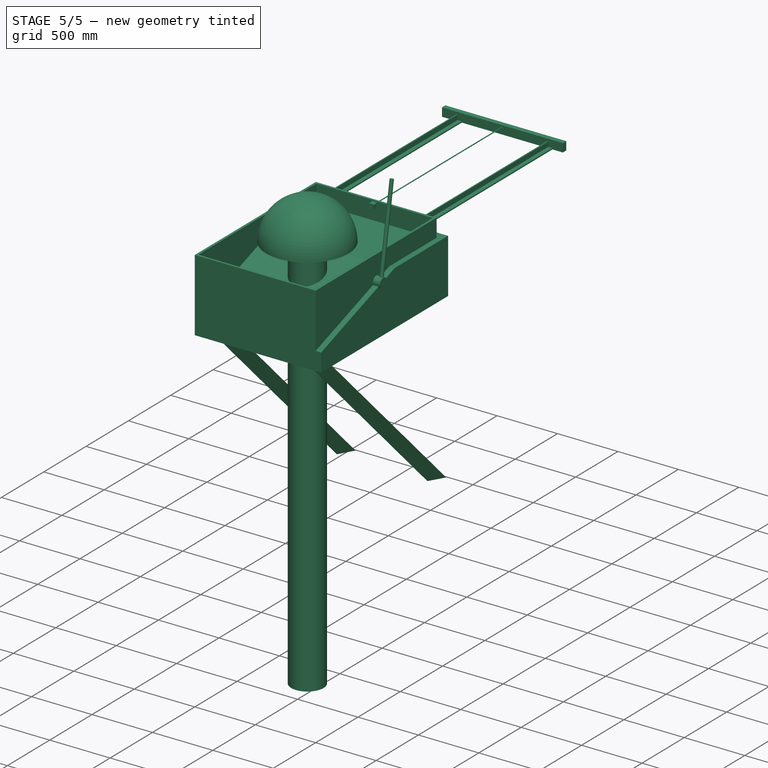
[diagram: stage 5 of 5 — iso view after this stage's code; geometry added in this stage tinted green]
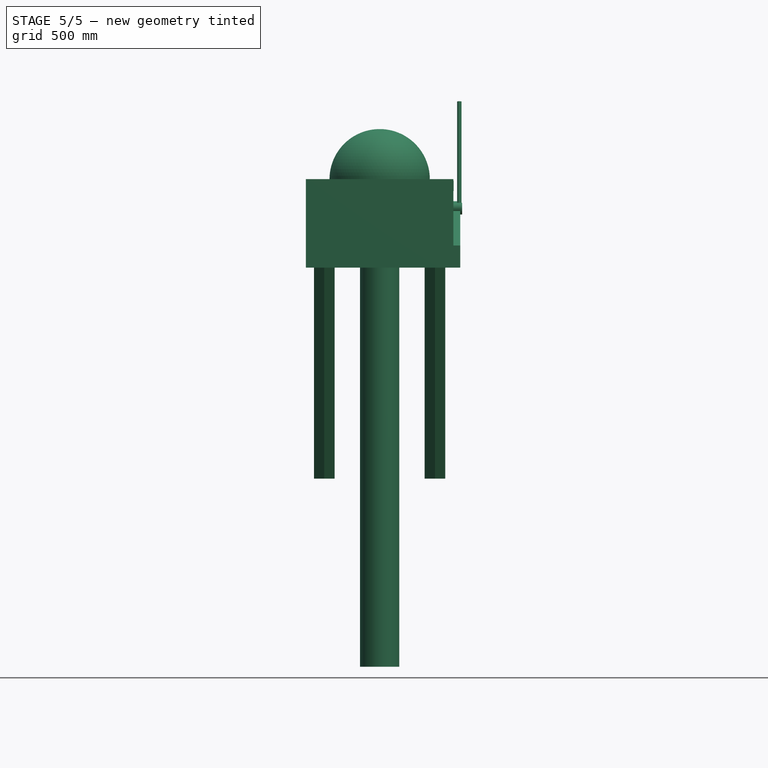
[diagram: stage 5 of 5 — front view after this stage's code; geometry added in this stage tinted green]
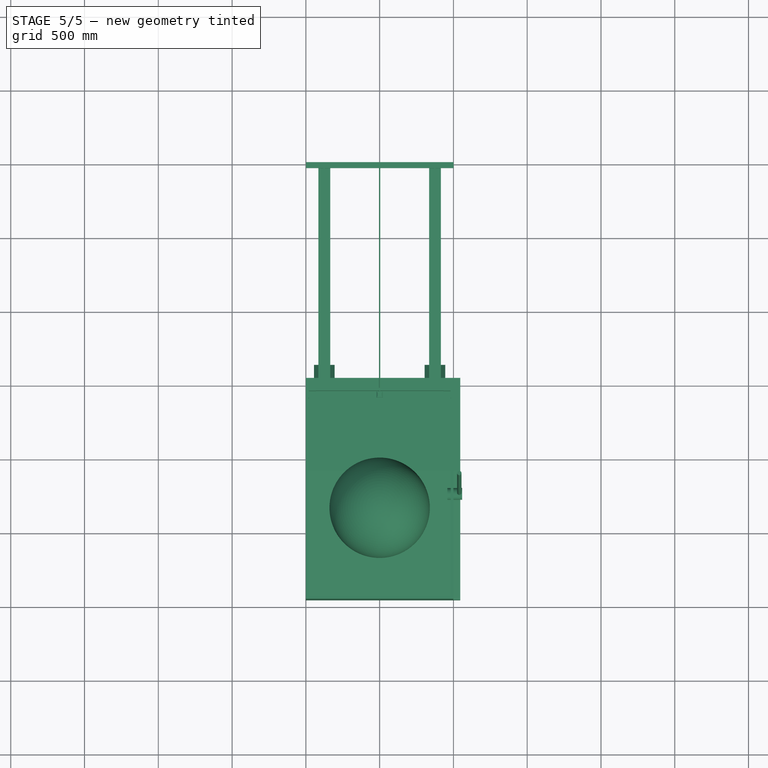
[diagram: stage 5 of 5 — top view after this stage's code; geometry added in this stage tinted green]
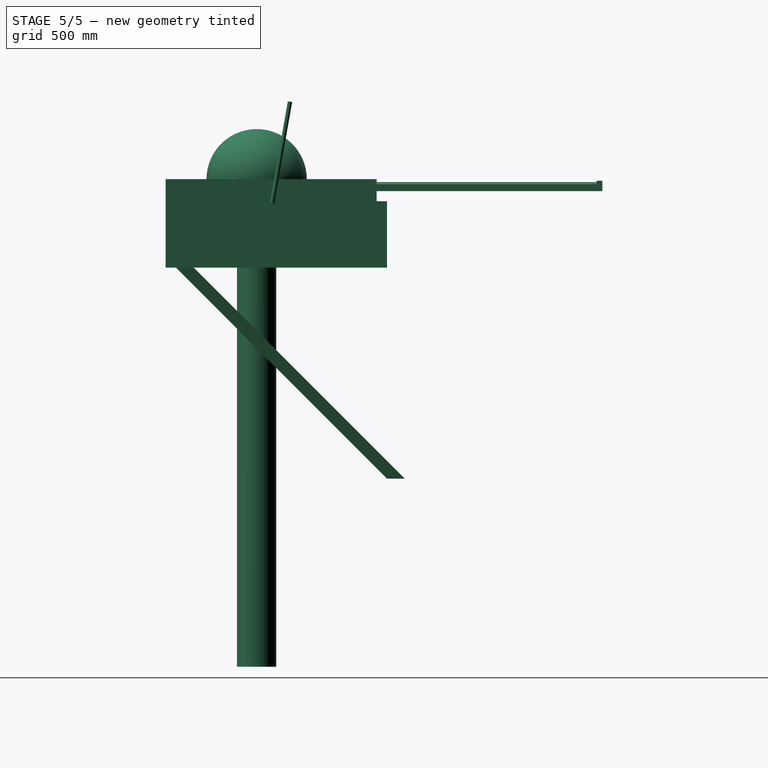
[diagram: stage 5 of 5 — right view after this stage's code; geometry added in this stage tinted green]
FEATURE [Sketcher::SketchObject] Sketch036  label="Sketch perfil"
  sketch-geometry (6):
    g0: LineSegment StartX=2 StartY=2 StartZ=0 EndX=50 EndY=2 EndZ=0
    g1: LineSegment StartX=50 StartY=2 StartZ=0 EndX=50 EndY=0 EndZ=0
    g2: LineSegment StartX=50 StartY=0 StartZ=0 EndX=0 EndY=0 EndZ=0
    g3: LineSegment StartX=0 StartY=0 StartZ=0 EndX=0 EndY=50 EndZ=0
    g4: LineSegment StartX=0 StartY=50 StartZ=0 EndX=2 EndY=50 EndZ=0
    g5: LineSegment StartX=2 StartY=50 StartZ=0 EndX=2 EndY=2 EndZ=0
  constraints (17):
    c: Coincident(g0,g1)
    c: Vertical(g1)
    c: Coincident(g1,g2)
    c: Horizontal(g2)
    c: Coincident(g2,g3)
    c: Vertical(g3)
    c: Coincident(g3,g4)
    c: Horizontal(g4)
    c: Coincident(g4,g5)
    c: Coincident(g5,g0)
    c: Vertical(g5)
    c: Horizontal(g0)
    c: Coincident(g2,g-1)
    c: Equal(g5,g0)
    c: DistanceY(g1,g1) = -2
    c: Equal(g4,g1)
    c: DistanceY(g-1,g3) = 50
FEATURE [PartDesign::Pad] Pad018  label="Perfil_alto_caja"
  Length = 532
  Length2 = 100
  Sketch = -> Sketch036
  Type = 0
  expr: Length = Medidas.alto_caja - Medidas.espesor - 50
FEATURE [Part::FeaturePython] Clone061  label="Clon_perfil_alto_caja001"  # Draft clone (typed FeaturePython)
  Objects = -> [Pad018]
  Placement = pos=(982,1412,68) rot=(0,0,1;3.14159rad)
  Scale = (1,1,1)
  expr: Placement.Base.z = Medidas.espesor + 50
  expr: Placement.Base.y = Medidas.largo_caja - Medidas.espesor
  expr: Placement.Base.x = Medidas.ancho_caja - Medidas.espesor
FEATURE [Part::FeaturePython] Clone060  label="Clon_perfil_alto_caja"  # Draft clone (typed FeaturePython)
  Objects = -> [Pad018]
  Placement = pos=(18,1412,68) rot=(0,0,-1;1.5708rad)
  Scale = (1,1,1)
  expr: Placement.Base.x = Medidas.espesor
  expr: Placement.Base.z = Medidas.espesor + 50
  expr: Placement.Base.y = Medidas.largo_caja - Medidas.espesor
FEATURE [Part::FeaturePython] Clone059  label="Clon_perfil_alto_caja002"  # Draft clone (typed FeaturePython)
  Objects = -> [Pad018]
  Placement = pos=(18,18,68) rot=(0,0,1;0rad)
  Scale = (1,1,1)
  expr: Placement.Base.x = Medidas.espesor
  expr: Placement.Base.z = Medidas.espesor + 50
  expr: Placement.Base.y = Medidas.espesor
FEATURE [Part::FeaturePython] Clone058  label="Clon_perfil_alto_caja003"  # Draft clone (typed FeaturePython)
  Objects = -> [Pad018]
  Placement = pos=(982,18,68) rot=(0,0,1;1.5708rad)
  Scale = (1,1,1)
  expr: Placement.Base.z = Medidas.espesor + 50
  expr: Placement.Base.y = Medidas.espesor
  expr: Placement.Base.x = Medidas.ancho_caja - Medidas.espesor
FEATURE [Sketcher::SketchObject] Sketch038  label="Sketch perfil002"
  sketch-geometry (6):
    g0: LineSegment StartX=2 StartY=2 StartZ=0 EndX=50 EndY=2 EndZ=0
    g1: LineSegment StartX=50 StartY=2 StartZ=0 EndX=50 EndY=0 EndZ=0
    g2: LineSegment StartX=50 StartY=0 StartZ=0 EndX=0 EndY=0 EndZ=0
    g3: LineSegment StartX=0 StartY=0 StartZ=0 EndX=0 EndY=50 EndZ=0
    g4: LineSegment StartX=0 StartY=50 StartZ=0 EndX=2 EndY=50 EndZ=0
    g5: LineSegment StartX=2 StartY=50 StartZ=0 EndX=2 EndY=2 EndZ=0
  constraints (17):
    c: Coincident(g0,g1)
    c: Vertical(g1)
    c: Coincident(g1,g2)
    c: Horizontal(g2)
    c: Coincident(g2,g3)
    c: Vertical(g3)
    c: Coincident(g3,g4)
    c: Horizontal(g4)
    c: Coincident(g4,g5)
    c: Coincident(g5,g0)
    c: Vertical(g5)
    c: Horizontal(g0)
    c: Coincident(g2,g-1)
    c: Equal(g5,g0)
    c: DistanceY(g1,g1) = -2
    c: Equal(g4,g1)
    c: DistanceY(g-1,g3) = 50
FEATURE [PartDesign::Pad] Pad020  label="Perfil_ancho_caja"
  Length = 964
  Length2 = 100
  Sketch = -> Sketch038
  Type = 0
  expr: Length = Medidas.ancho_caja - 2 * Medidas.espesor
FEATURE [Part::FeaturePython] Clone063  label="Clone of Perfil_ancho_caja"  # Draft clone (typed FeaturePython)
  Objects = -> [Pad020]
  Placement = pos=(18,18,18) rot=(0.57735,0.57735,0.57735;2.0944rad)
  Scale = (1,1,1)
  expr: Placement.Base.y = Medidas.espesor
  expr: Placement.Base.x = Medidas.espesor
  expr: Placement.Base.z = Medidas.espesor
FEATURE [Part::FeaturePython] Clone064  label="Clone of Perfil_ancho_caja001"  # Draft clone (typed FeaturePython)
  Objects = -> [Pad020]
  Placement = pos=(18,1412,18) rot=(0.707107,0,0.707107;3.14159rad)
  Scale = (1,1,1)
  expr: Placement.Base.y = Medidas.largo_caja - Medidas.espesor
  expr: Placement.Base.x = Medidas.espesor
  expr: Placement.Base.z = Medidas.espesor
FEATURE [Sketcher::SketchObject] Sketch041  label="Sketch perfil003"
  sketch-geometry (6):
    g0: LineSegment StartX=2 StartY=2 StartZ=0 EndX=50 EndY=2 EndZ=0
    g1: LineSegment StartX=50 StartY=2 StartZ=0 EndX=50 EndY=0 EndZ=0
    g2: LineSegment StartX=50 StartY=0 StartZ=0 EndX=0 EndY=0 EndZ=0
    g3: LineSegment StartX=0 StartY=0 StartZ=0 EndX=0 EndY=50 EndZ=0
    g4: LineSegment StartX=0 StartY=50 StartZ=0 EndX=2 EndY=50 EndZ=0
    g5: LineSegment StartX=2 StartY=50 StartZ=0 EndX=2 EndY=2 EndZ=0
  constraints (17):
    c: Coincident(g0,g1)
    c: Vertical(g1)
    c: Coincident(g1,g2)
    c: Horizontal(g2)
    c: Coincident(g2,g3)
    c: Vertical(g3)
    c: Coincident(g3,g4)
    c: Horizontal(g4)
    c: Coincident(g4,g5)
    c: Coincident(g5,g0)
    c: Vertical(g5)
    c: Horizontal(g0)
    c: Coincident(g2,g-1)
    c: Equal(g5,g0)
    c: DistanceY(g1,g1) = -2
    c: Equal(g4,g1)
    c: DistanceY(g3,g3) = 50
FEATURE [PartDesign::Pad] Pad022  label="Perfil_alto1_tapa"
  Length = 382
  Length2 = 100
  Sketch = -> Sketch041
  Type = 0
  expr: Length = Medidas.alto_tapa1 - Medidas.espesor - 50
FEATURE [Part::FeaturePython] Clone065  label="Clone of Perfil_alto1_tapa"  # Draft clone (typed FeaturePython)
  Objects = -> [Pad022]
  Placement = pos=(1028,1482,0) rot=(0,0,1;3.14159rad)
  Scale = (1,1,1)
  expr: Placement.Base.x = Medidas.ancho_tapa - Medidas.espesor
  expr: Placement.Base.y = Medidas.largo_tapa1 - Medidas.espesor
FEATURE [Part::FeaturePython] Clone066  label="Clone of Perfil_alto1_tapa001"  # Draft clone (typed FeaturePython)
  Objects = -> [Pad022]
  Placement = pos=(18,1482,0) rot=(0,0,-1;1.5708rad)
  Scale = (1,1,1)
  expr: Placement.Base.x = Medidas.espesor
  expr: Placement.Base.y = Medidas.largo_tapa1 - Medidas.espesor
FEATURE [Sketcher::SketchObject] Sketch042  label="Sketch perfil004"
  sketch-geometry (6):
    g0: LineSegment StartX=2 StartY=2 StartZ=0 EndX=50 EndY=2 EndZ=0
    g1: LineSegment StartX=50 StartY=2 StartZ=0 EndX=50 EndY=0 EndZ=0
    g2: LineSegment StartX=50 StartY=0 StartZ=0 EndX=0 EndY=0 EndZ=0
    g3: LineSegment StartX=0 StartY=0 StartZ=0 EndX=0 EndY=50 EndZ=0
    g4: LineSegment StartX=0 StartY=50 StartZ=0 EndX=2 EndY=50 EndZ=0
    g5: LineSegment StartX=2 StartY=50 StartZ=0 EndX=2 EndY=2 EndZ=0
  constraints (17):
    c: Coincident(g0,g1)
    c: Vertical(g1)
    c: Coincident(g1,g2)
    c: Horizontal(g2)
    c: Coincident(g2,g3)
    c: Vertical(g3)
    c: Coincident(g3,g4)
    c: Horizontal(g4)
    c: Coincident(g4,g5)
    c: Coincident(g5,g0)
    c: Vertical(g5)
    c: Horizontal(g0)
    c: Coincident(g2,g-1)
    c: Equal(g5,g0)
    c: DistanceY(g1,g1) = -2
    c: Equal(g4,g1)
    c: DistanceY(g3,g3) = 50
FEATURE [PartDesign::Pad] Pad023  label="Perfil_alto2_tapa"
  Length = 82
  Length2 = 100
  Sketch = -> Sketch042
  Type = 0
  expr: Length = Medidas.alto_tapa2 - Medidas.espesor - 50
FEATURE [Part::FeaturePython] Clone067  label="Clone of Perfil_alto2_tapa"  # Draft clone (typed FeaturePython)
  Objects = -> [Pad023]
  Placement = pos=(18,18,0) rot=(0,0,1;0rad)
  Scale = (1,1,1)
  expr: Placement.Base.x = Medidas.espesor
  expr: Placement.Base.y = Medidas.espesor
FEATURE [Part::FeaturePython] Clone068  label="Clone of Perfil_alto2_tapa001"  # Draft clone (typed FeaturePython)
  Objects = -> [Pad023]
  Placement = pos=(1028,18,0) rot=(0,0,1;1.5708rad)
  Scale = (1,1,1)
  expr: Placement.Base.y = Medidas.espesor
  expr: Placement.Base.x = Medidas.ancho_tapa - Medidas.espesor
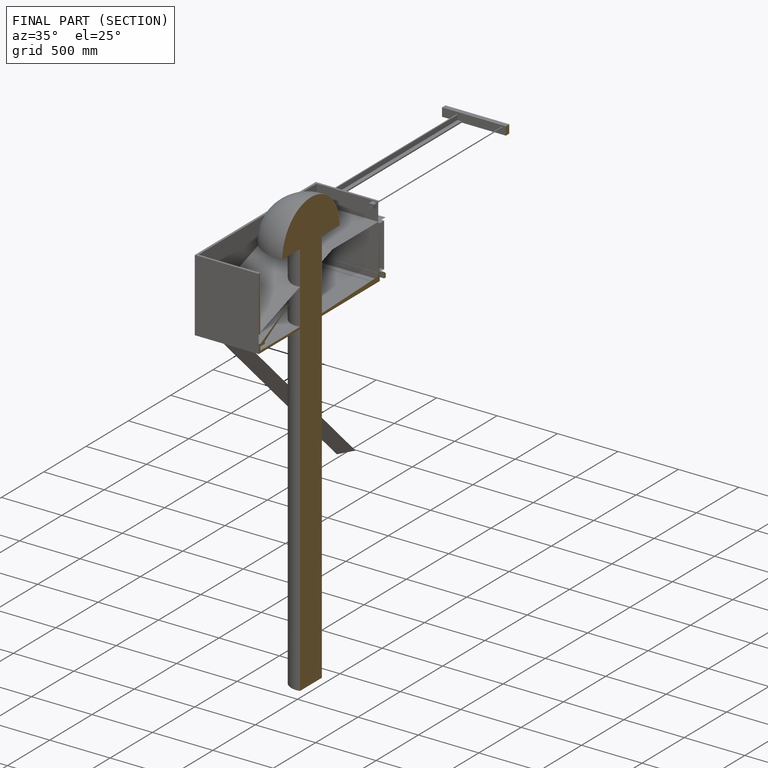
[diagram: finished part — half-section view (interior)]
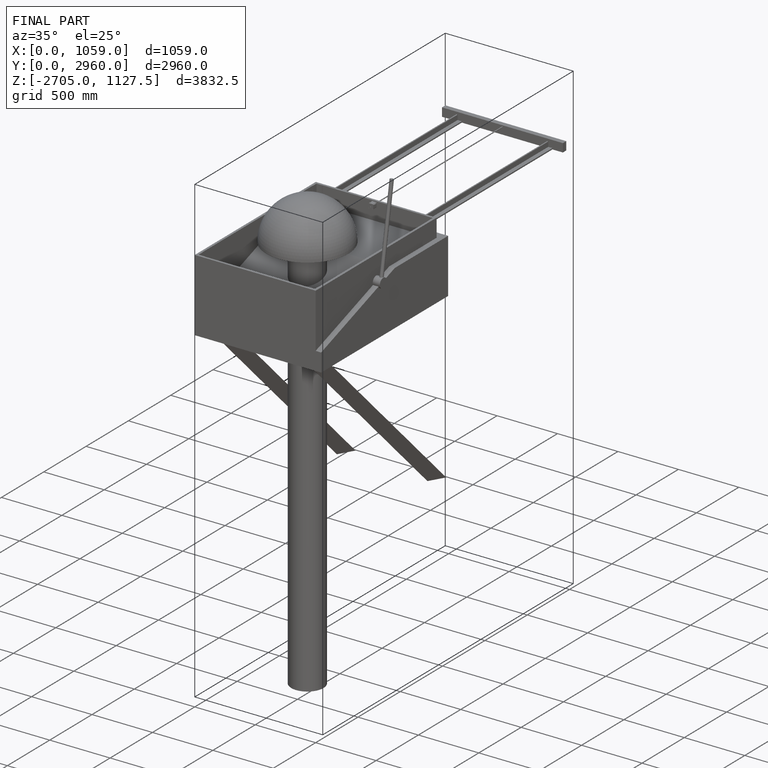
[diagram: finished part — iso view with bounding-box wireframe]
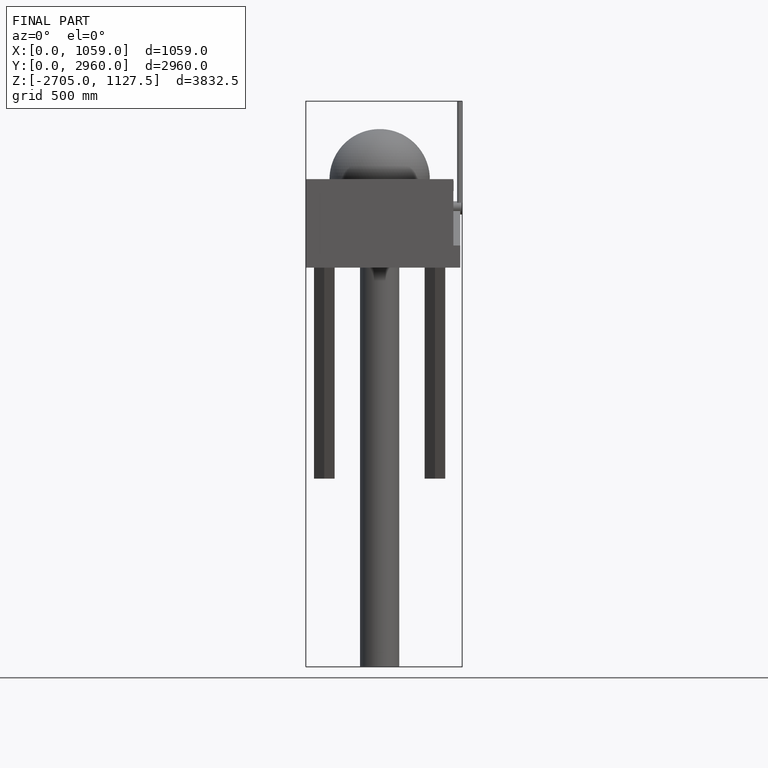
[diagram: finished part — front view with bounding-box wireframe]
